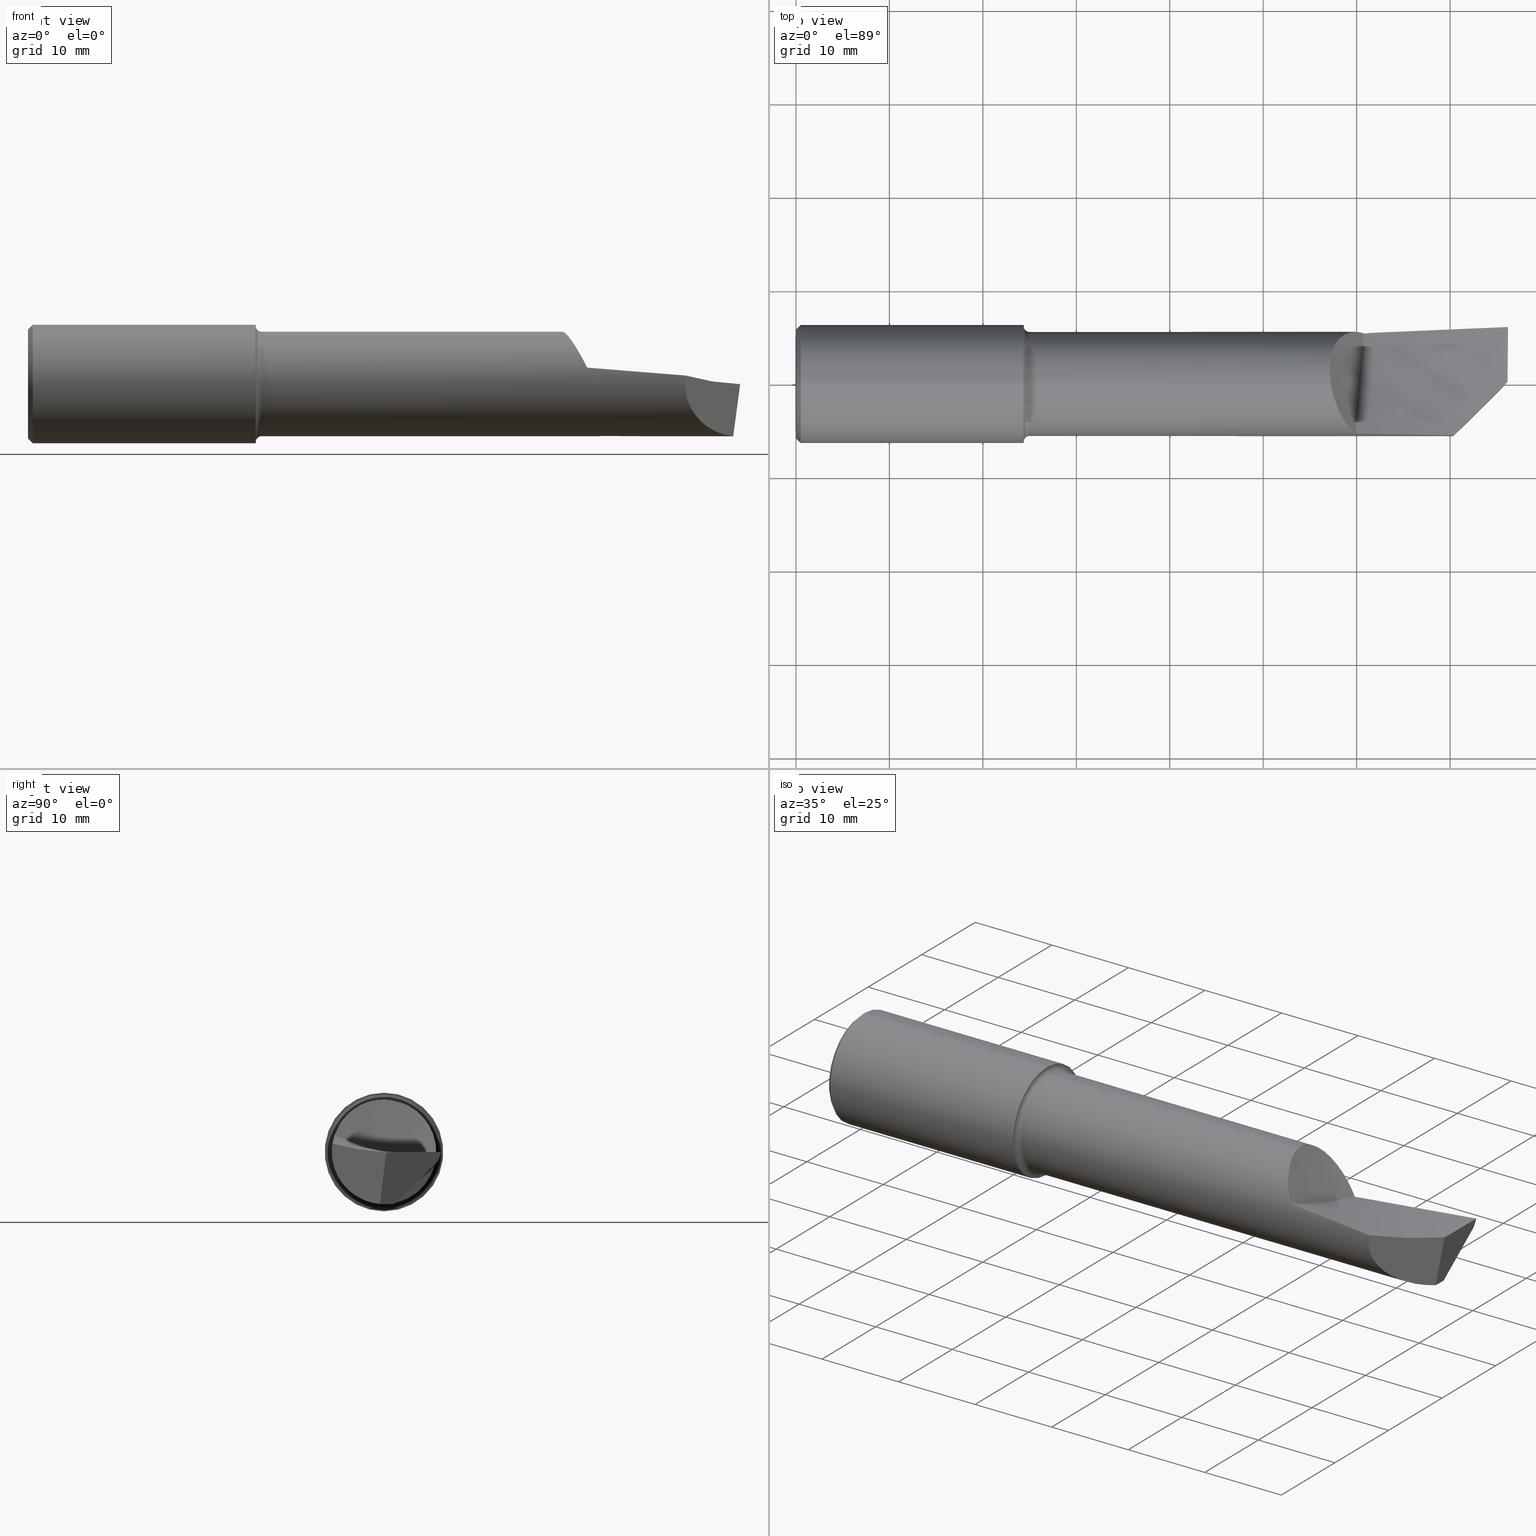
[diagram: canonical four-view strip — front | top / right | iso, engineering-drawing reading convention]
A machine part, canonical four-view strip (front | top / right | iso — engineering-drawing reading convention). The complete STEP part file that produces these views, byte-faithful:
ISO-10303-21;
HEADER;
FILE_DESCRIPTION (( 'STEP AP203' ),
    '1' );
FILE_NAME ('216414-HB4802000.STEP',
    '2024-08-09T22:30:45',
    ( '' ),
    ( '' ),
    'SwSTEP 2.0',
    'SolidWorks 2024',
    '' );
FILE_SCHEMA (( 'CONFIG_CONTROL_DESIGN' ));
ENDSEC;

DATA;
#1 = DIRECTION ( 'NONE',  ( -0.9925083585251991414, 0.008661489226065230418, 0.1218693434051474900 ) ) ;
#2 = AXIS2_PLACEMENT_3D ( 'NONE', #455, #336, #50 ) ;
#3 = CARTESIAN_POINT ( 'NONE',  ( 2.606666739029601665, 0.2256837431084287859, -0.03431182089004202601 ) ) ;
#4 = AXIS2_PLACEMENT_3D ( 'NONE', #302, #24, #666 ) ;
#5 =( NAMED_UNIT ( * ) PLANE_ANGLE_UNIT ( ) SI_UNIT ( $, .RADIAN. ) );
#6 = EDGE_CURVE ( 'NONE', #518, #96, #425, .T. ) ;
#7 = CARTESIAN_POINT ( 'NONE',  ( 0.000000000000000000, 0.000000000000000000, 0.2199999999999999734 ) ) ;
#8 = B_SPLINE_CURVE_WITH_KNOTS ( 'NONE', 3,
 ( #174, #519, #215, #451, #159, #392, #218, #625, #45 ),
 .UNSPECIFIED., .F., .F.,
 ( 4, 2, 1, 1, 1, 4 ),
 ( 0.9276727079954698585, 0.9321931637457528952, 0.9367136194960358209, 0.9457545309966022273, 0.9638363539977349292, 1.000000000000000000 ),
 .UNSPECIFIED. ) ;
#9 = CARTESIAN_POINT ( 'NONE',  ( 2.564429700643780841, -0.2143015012764732941, 0.05261254719292924459 ) ) ;
#10 = CARTESIAN_POINT ( 'NONE',  ( 2.341349125908411821, 0.2183424038738380479, 0.02700579478127015584 ) ) ;
#11 = CARTESIAN_POINT ( 'NONE',  ( 2.356559098504054095, -0.2088777642239234011, 0.06906576061805747013 ) ) ;
#12 = CARTESIAN_POINT ( 'NONE',  ( 2.410000000000000142, 0.2159144635021685021, -0.04897531016107510571 ) ) ;
#13 = PERSON_AND_ORGANIZATION_ROLE ( 'design_owner' ) ;
#14 = LINE ( 'NONE', #656, #42 ) ;
#15 = ORIENTED_EDGE ( 'NONE', *, *, #629, .T. ) ;
#16 = CARTESIAN_POINT ( 'NONE',  ( 2.303450587856114229, 0.2017322369564549522, 0.08777317349639240929 ) ) ;
#17 = ADVANCED_FACE ( 'NONE', ( #533 ), #124, .T. ) ;
#18 = CONICAL_SURFACE ( 'NONE', #255, 0.2498499999999999888, 0.7853981633974506105 ) ;
#19 = CARTESIAN_POINT ( 'NONE',  ( 2.283226719027449558, -0.1059187799789651496, 0.1929277633858682006 ) ) ;
#20 = APPROVAL_ROLE ( '' ) ;
#21 = ADVANCED_FACE ( 'NONE', ( #481 ), #589, .T. ) ;
#22 = CARTESIAN_POINT ( 'NONE',  ( 2.748939529771277979, -0.2394126230373499198, -0.1000115783150166138 ) ) ;
#23 = DIRECTION ( 'NONE',  ( 1.000000000000000000, -0.000000000000000000, -0.000000000000000000 ) ) ;
#24 = DIRECTION ( 'NONE',  ( -1.000000000000000000, -0.000000000000000000, -0.000000000000000000 ) ) ;
#25 = COORDINATED_UNIVERSAL_TIME_OFFSET ( 8, 0, .BEHIND. ) ;
#26 = CIRCLE ( 'NONE', #343, 0.2199999999999999734 ) ;
#27 = CARTESIAN_POINT ( 'NONE',  ( 0.000000000000000000, 2.937315347754926265E-17, 0.2298499999999999155 ) ) ;
#28 = AXIS2_PLACEMENT_3D ( 'NONE', #669, #191, #376 ) ;
#29 = CARTESIAN_POINT ( 'NONE',  ( 2.291331261531611485, -0.1239598244847214398, 0.1817528458976704064 ) ) ;
#30 = ORIENTED_EDGE ( 'NONE', *, *, #720, .T. ) ;
#31 = CALENDAR_DATE ( 2024, 9, 8 ) ;
#32 = B_SPLINE_CURVE_WITH_KNOTS ( 'NONE', 3,
 ( #447, #495, #678, #664 ),
 .UNSPECIFIED., .F., .F.,
 ( 4, 4 ),
 ( 5.707661568149648119E-05, 0.006771847982226828627 ),
 .UNSPECIFIED. ) ;
#33 = CARTESIAN_POINT ( 'NONE',  ( 0.9595250382262699995, 3.000384657911014877E-17, -0.2449999999999999956 ) ) ;
#34 = DIRECTION ( 'NONE',  ( 0.000000000000000000, -1.000000000000000000, 0.000000000000000000 ) ) ;
#35 = ORIENTED_EDGE ( 'NONE', *, *, #176, .T. ) ;
#36 = CARTESIAN_POINT ( 'NONE',  ( 2.999444042726896686, 0.2388107301504568125, -0.004425444538990270550 ) ) ;
#37 = DIRECTION ( 'NONE',  ( 1.000000000000000000, -0.000000000000000000, -0.000000000000000000 ) ) ;
#38 = VERTEX_POINT ( 'NONE', #180 ) ;
#39 = EDGE_CURVE ( 'NONE', #96, #718, #306, .T. ) ;
#40 = FACE_OUTER_BOUND ( 'NONE', #486, .T. ) ;
#41 = AXIS2_PLACEMENT_3D ( 'NONE', #360, #476, #541 ) ;
#42 = VECTOR ( 'NONE', #43, 39.37007874015748854 ) ;
#43 = DIRECTION ( 'NONE',  ( -0.008726535498366671390, -0.9999619230641714207, 0.000000000000000000 ) ) ;
#44 = EDGE_LOOP ( 'NONE', ( #744, #490, #121 ) ) ;
#45 = CARTESIAN_POINT ( 'NONE',  ( 2.250000000000000444, 0.02296396303119626128, 0.2187982093206017054 ) ) ;
#46 = CARTESIAN_POINT ( 'NONE',  ( 0.000000000000000000, 0.000000000000000000, 0.000000000000000000 ) ) ;
#47 = ORIENTED_EDGE ( 'NONE', *, *, #629, .F. ) ;
#48 = CARTESIAN_POINT ( 'NONE',  ( 2.410000000000000142, 0.2135228625924188994, -0.05299044395307118266 ) ) ;
#49 = EDGE_CURVE ( 'NONE', #518, #754, #505, .T. ) ;
#50 = DIRECTION ( 'NONE',  ( 0.000000000000000000, 0.000000000000000000, 1.000000000000000000 ) ) ;
#51 = EDGE_LOOP ( 'NONE', ( #178, #349, #78, #35, #297, #628, #529, #92, #365, #577 ) ) ;
#52 = CARTESIAN_POINT ( 'NONE',  ( 0.9595250382262699995, 3.059780027669661931E-17, -0.2498499999999999888 ) ) ;
#53 = B_SPLINE_SURFACE_WITH_KNOTS ( 'NONE', 1, 3, ( 
 ( #683, #325, #521, #209 ),
 ( #321, #393, #631, #563 ) ),
 .UNSPECIFIED., .F., .F., .F.,
 ( 2, 2 ),
 ( 4, 4 ),
 ( 0.000000000000000000, 1.000000000000000000 ),
 ( 0.03106933249314342005, 0.04273401883258817063 ),
 .UNSPECIFIED. ) ;
#54 = AXIS2_PLACEMENT_3D ( 'NONE', #160, #743, #106 ) ;
#55 = CARTESIAN_POINT ( 'NONE',  ( 0.000000000000000000, 0.000000000000000000, 0.000000000000000000 ) ) ;
#56 = EDGE_CURVE ( 'NONE', #87, #556, #665, .T. ) ;
#57 = CARTESIAN_POINT ( 'NONE',  ( 2.356559098504054095, -0.2088777642239234011, 0.06906576061805747013 ) ) ;
#58 = DIRECTION ( 'NONE',  ( 0.000000000000000000, 0.000000000000000000, 1.000000000000000000 ) ) ;
#59 = DIRECTION ( 'NONE',  ( 0.000000000000000000, -0.000000000000000000, 1.000000000000000000 ) ) ;
#60 =( BOUNDED_CURVE ( )  B_SPLINE_CURVE ( 2, ( #388, #372, #670 ),
 .UNSPECIFIED., .F., .F. ) 
 B_SPLINE_CURVE_WITH_KNOTS ( ( 3, 3 ),
 ( 0.5266614230579080846, 0.5400257304258027080 ),
 .UNSPECIFIED. ) 
 CURVE ( )  GEOMETRIC_REPRESENTATION_ITEM ( )  RATIONAL_B_SPLINE_CURVE ( ( 0.9955652346528232055, 0.9953917806560831361, 0.9952287059344254727 ) ) 
 REPRESENTATION_ITEM ( '' )  );
#61 = ORIENTED_EDGE ( 'NONE', *, *, #421, .F. ) ;
#62 = CARTESIAN_POINT ( 'NONE',  ( 2.970822649411938077, -0.01752950339669018254, -0.2193005164395774864 ) ) ;
#63 = DIRECTION ( 'NONE',  ( 1.000000000000000000, 0.000000000000000000, 0.000000000000000000 ) ) ;
#64 = ORIENTED_EDGE ( 'NONE', *, *, #128, .T. ) ;
#65 = LINE ( 'NONE', #245, #639 ) ;
#66 = APPROVAL ( #146, 'UNSPECIFIED' ) ;
#67 = DIRECTION ( 'NONE',  ( -1.000000000000000000, -0.000000000000000000, -0.000000000000000000 ) ) ;
#68 = AXIS2_PLACEMENT_3D ( 'NONE', #203, #211, #558 ) ;
#69 = VERTEX_POINT ( 'NONE', #555 ) ;
#70 = PRODUCT ( '216414-HB4802000', '216414-HB4802000', '', ( #350 ) ) ;
#71 = CARTESIAN_POINT ( 'NONE',  ( 2.418486830548867594, 0.2160475044874675399, -0.04882782362294733197 ) ) ;
#72 = VERTEX_POINT ( 'NONE', #201 ) ;
#73 = CARTESIAN_POINT ( 'NONE',  ( 2.303082447116823417, 0.2014617548662014646, 0.08839233498446039117 ) ) ;
#74 = CARTESIAN_POINT ( 'NONE',  ( 0.9595250382262699995, 0.000000000000000000, 0.000000000000000000 ) ) ;
#75 = CARTESIAN_POINT ( 'NONE',  ( 2.410000000000000142, 0.2159144635021685021, -0.04897531016107510571 ) ) ;
#76 = EDGE_CURVE ( 'NONE', #691, #155, #497, .T. ) ;
#77 = PRODUCT_DEFINITION_FORMATION_WITH_SPECIFIED_SOURCE ( 'ANY', '', #70, .NOT_KNOWN. ) ;
#78 = ORIENTED_EDGE ( 'NONE', *, *, #236, .T. ) ;
#79 = CARTESIAN_POINT ( 'NONE',  ( 2.256435488265876810, -0.02101578052564569143, 0.2199999835917510471 ) ) ;
#80 = DATE_AND_TIME ( #150, #508 ) ;
#81 = DIRECTION ( 'NONE',  ( 1.000000000000000000, 0.000000000000000000, 0.000000000000000000 ) ) ;
#82 = DIRECTION ( 'NONE',  ( -1.000000000000000000, -0.000000000000000000, -0.000000000000000000 ) ) ;
#83 = EDGE_LOOP ( 'NONE', ( #307, #186, #461 ) ) ;
#84 = CARTESIAN_POINT ( 'NONE',  ( 0.9595250382262699995, 0.3402499999999997193, 0.000000000000000000 ) ) ;
#85 = EDGE_CURVE ( 'NONE', #632, #273, #545, .T. ) ;
#86 = FACE_OUTER_BOUND ( 'NONE', #564, .T. ) ;
#87 = VERTEX_POINT ( 'NONE', #542 ) ;
#88 = COORDINATED_UNIVERSAL_TIME_OFFSET ( 8, 0, .BEHIND. ) ;
#89 = LOCAL_TIME ( 15, 30, 45.00000000000000000, #318 ) ;
#90 = CARTESIAN_POINT ( 'NONE',  ( 0.000000000000000000, 0.000000000000000000, 0.2498499999999999888 ) ) ;
#91 = CARTESIAN_POINT ( 'NONE',  ( 2.415641684470006378, 0.2152245864486048432, -0.05019323217790304381 ) ) ;
#92 = ORIENTED_EDGE ( 'NONE', *, *, #39, .T. ) ;
#93 = CALENDAR_DATE ( 2024, 9, 8 ) ;
#94 = CARTESIAN_POINT ( 'NONE',  ( 3.000000000000000444, 0.4258375057284731757, 0.01320825401576949422 ) ) ;
#95 = FACE_OUTER_BOUND ( 'NONE', #592, .T. ) ;
#96 = VERTEX_POINT ( 'NONE', #373 ) ;
#97 = CARTESIAN_POINT ( 'NONE',  ( 2.612381827555384728, 0.2257843348541355988, -0.03415235492857734284 ) ) ;
#98 = DIRECTION ( 'NONE',  ( -1.000000000000000000, -0.000000000000000000, -0.000000000000000000 ) ) ;
#99 = VERTEX_POINT ( 'NONE', #732 ) ;
#100 = EDGE_CURVE ( 'NONE', #632, #111, #357, .T. ) ;
#101 = FACE_OUTER_BOUND ( 'NONE', #214, .T. ) ;
#102 = AXIS2_PLACEMENT_3D ( 'NONE', #757, #59, #179 ) ;
#103 = DIRECTION ( 'NONE',  ( -1.000000000000000000, -0.000000000000000000, -0.000000000000000000 ) ) ;
#104 = ORIENTED_EDGE ( 'NONE', *, *, #755, .F. ) ;
#105 = CARTESIAN_POINT ( 'NONE',  ( 0.000000000000000000, 0.000000000000000000, -0.2298499999999999155 ) ) ;
#106 = DIRECTION ( 'NONE',  ( 0.000000000000000000, -1.224646799147353454E-16, 1.000000000000000000 ) ) ;
#107 = VERTEX_POINT ( 'NONE', #729 ) ;
#108 = CARTESIAN_POINT ( 'NONE',  ( 2.268323433205456485, 0.1590487263599171808, 0.1519989609637909245 ) ) ;
#109 = ADVANCED_FACE ( 'NONE', ( #132 ), #595, .F. ) ;
#110 = FACE_OUTER_BOUND ( 'NONE', #499, .T. ) ;
#111 = VERTEX_POINT ( 'NONE', #135 ) ;
#112 = CARTESIAN_POINT ( 'NONE',  ( 2.970889738018301252, 0.000000000000000000, -0.2200000000000000566 ) ) ;
#113 = AXIS2_PLACEMENT_3D ( 'NONE', #74, #708, #647 ) ;
#114 = CARTESIAN_POINT ( 'NONE',  ( 3.000000000000000444, 0.2402499999999999636, 0.000000000000000000 ) ) ;
#115 = ORIENTED_EDGE ( 'NONE', *, *, #531, .T. ) ;
#116 = DIRECTION ( 'NONE',  ( -1.000000000000000000, -0.000000000000000000, -0.000000000000000000 ) ) ;
#117 = B_SPLINE_CURVE_WITH_KNOTS ( 'NONE', 3,
 ( #271, #226, #583, #575 ),
 .UNSPECIFIED., .F., .F.,
 ( 4, 4 ),
 ( 0.000000000000000000, 0.009602408570562699294 ),
 .UNSPECIFIED. ) ;
#118 = CARTESIAN_POINT ( 'NONE',  ( 1.717948717948720727, -0.3527962921881071523, 0.2384890030643342096 ) ) ;
#119 = ORIENTED_EDGE ( 'NONE', *, *, #355, .F. ) ;
#120 = FACE_OUTER_BOUND ( 'NONE', #158, .T. ) ;
#121 = ORIENTED_EDGE ( 'NONE', *, *, #156, .T. ) ;
#122 = CARTESIAN_POINT ( 'NONE',  ( 2.377263106783647828, 0.2194462568404665082, -0.02799947325392306702 ) ) ;
#123 = CARTESIAN_POINT ( 'NONE',  ( 0.9595250382262699995, 0.000000000000000000, 0.2449999999999999956 ) ) ;
#124 = B_SPLINE_SURFACE_WITH_KNOTS ( 'NONE', 1, 3, ( 
 ( #410, #644, #3, #12 ),
 ( #126, #300, #243, #581 ) ),
 .UNSPECIFIED., .F., .F., .F.,
 ( 2, 2 ),
 ( 4, 4 ),
 ( 0.000000000000000000, 1.000000000000000000 ),
 ( 0.000000000000000000, 1.000000000000000000 ),
 .UNSPECIFIED. ) ;
#125 = CIRCLE ( 'NONE', #381, 0.2200000000000000011 ) ;
#126 = CARTESIAN_POINT ( 'NONE',  ( 3.000000000000000444, 0.2288778106318485051, -0.03500000000000001027 ) ) ;
#127 = DIRECTION ( 'NONE',  ( 0.000000000000000000, -0.8460071056678396539, -0.5331716207371927085 ) ) ;
#128 = EDGE_CURVE ( 'NONE', #221, #72, #230, .T. ) ;
#129 = CARTESIAN_POINT ( 'NONE',  ( 0.02000000000000000042, 3.059780027669661931E-17, -0.2498499999999999888 ) ) ;
#130 = CARTESIAN_POINT ( 'NONE',  ( 2.392944745247169713, 0.2140968924730453637, -0.05062134562993372833 ) ) ;
#131 = EDGE_CURVE ( 'NONE', #465, #691, #254, .T. ) ;
#132 = FACE_OUTER_BOUND ( 'NONE', #419, .T. ) ;
#133 = ORIENTED_EDGE ( 'NONE', *, *, #711, .F. ) ;
#134 = APPROVAL_STATUS ( 'not_yet_approved' ) ;
#135 = CARTESIAN_POINT ( 'NONE',  ( 2.410000000000000142, 2.694222958124177561E-17, -0.2200000000000000011 ) ) ;
#136 = LOCAL_TIME ( 15, 30, 45.00000000000000000, #198 ) ;
#137 = AXIS2_PLACEMENT_3D ( 'NONE', #342, #571, #512 ) ;
#138 = PERSON_AND_ORGANIZATION_ROLE ( 'classification_officer' ) ;
#139 = AXIS2_PLACEMENT_3D ( 'NONE', #620, #279, #736 ) ;
#140 = FACE_OUTER_BOUND ( 'NONE', #685, .T. ) ;
#141 = DIRECTION ( 'NONE',  ( 0.000000000000000000, -0.5117430001143385976, -0.8591385812742762251 ) ) ;
#142 = PERSON_AND_ORGANIZATION ( #351, #303 ) ;
#143 = APPROVAL ( #134, 'UNSPECIFIED' ) ;
#144 = PLANE ( 'NONE',  #366 ) ;
#145 = DIRECTION ( 'NONE',  ( 0.000000000000000000, 0.000000000000000000, 1.000000000000000000 ) ) ;
#146 = APPROVAL_STATUS ( 'not_yet_approved' ) ;
#147 = CARTESIAN_POINT ( 'NONE',  ( 0.000000000000000000, 0.000000000000000000, 0.000000000000000000 ) ) ;
#148 = CARTESIAN_POINT ( 'NONE',  ( 2.595439364798721726, 3.734948428837859484E-18, -0.2200000000000000566 ) ) ;
#149 = ORIENTED_EDGE ( 'NONE', *, *, #513, .F. ) ;
#150 = CALENDAR_DATE ( 2024, 9, 8 ) ;
#151 = VECTOR ( 'NONE', #466, 39.37007874015748143 ) ;
#152 = CARTESIAN_POINT ( 'NONE',  ( 2.038461538461540545, 0.4058074895221152611, -0.1396724983455376601 ) ) ;
#153 = ADVANCED_FACE ( 'NONE', ( #86 ), #704, .T. ) ;
#154 = CARTESIAN_POINT ( 'NONE',  ( 2.410000000000000142, 0.000000000000000000, -0.2200000000000000566 ) ) ;
#155 = VERTEX_POINT ( 'NONE', #129 ) ;
#156 = EDGE_CURVE ( 'NONE', #439, #518, #479, .T. ) ;
#157 = CARTESIAN_POINT ( 'NONE',  ( 2.410000000000000142, 0.1970817183423179408, -0.08059262188691969364 ) ) ;
#158 = EDGE_LOOP ( 'NONE', ( #406, #453, #750, #30, #657, #115 ) ) ;
#159 = CARTESIAN_POINT ( 'NONE',  ( 2.252520733773949679, 0.003396144702150293883, 0.2199775199475225707 ) ) ;
#160 = CARTESIAN_POINT ( 'NONE',  ( 0.9845250382262700217, 3.000384657911014877E-17, -0.2449999999999999956 ) ) ;
#161 = ORIENTED_EDGE ( 'NONE', *, *, #100, .T. ) ;
#162 = CARTESIAN_POINT ( 'NONE',  ( 2.253785031901272884, 0.1187834096907069842, 0.1856707252788643292 ) ) ;
#163 = AXIS2_PLACEMENT_3D ( 'NONE', #527, #335, #578 ) ;
#164 = VECTOR ( 'NONE', #141, 39.37007874015748143 ) ;
#165 = CARTESIAN_POINT ( 'NONE',  ( 2.960702989773093652, -0.02764916303553413557, -0.3009961683226821672 ) ) ;
#166 = ORIENTED_EDGE ( 'NONE', *, *, #369, .F. ) ;
#167 = EDGE_CURVE ( 'NONE', #38, #646, #14, .T. ) ;
#168 = CARTESIAN_POINT ( 'NONE',  ( 2.998256711176775724, 0.08645143747529006328, -0.003266647090703632232 ) ) ;
#169 = DIRECTION ( 'NONE',  ( 0.000000000000000000, 0.000000000000000000, 1.000000000000000000 ) ) ;
#170 = ORIENTED_EDGE ( 'NONE', *, *, #236, .F. ) ;
#171 = CARTESIAN_POINT ( 'NONE',  ( 0.000000000000000000, 2.694222958124176637E-17, -0.2199999999999999734 ) ) ;
#172 = CARTESIAN_POINT ( 'NONE',  ( 2.038461538461540101, -0.1360584583238938217, 0.04682475114047649628 ) ) ;
#173 = ORIENTED_EDGE ( 'NONE', *, *, #414, .F. ) ;
#174 = CARTESIAN_POINT ( 'NONE',  ( 2.253048836201134275, -1.183062825732959087E-06, 0.2200124226379089609 ) ) ;
#175 = AXIS2_PLACEMENT_3D ( 'NONE', #46, #449, #398 ) ;
#176 = EDGE_CURVE ( 'NONE', #733, #646, #333, .T. ) ;
#177 = CARTESIAN_POINT ( 'NONE',  ( 2.418486830548867594, 0.2160475044874675399, -0.04882782362294733197 ) ) ;
#178 = ORIENTED_EDGE ( 'NONE', *, *, #700, .F. ) ;
#179 = DIRECTION ( 'NONE',  ( 1.000000000000000000, 0.000000000000000000, -0.000000000000000000 ) ) ;
#180 = CARTESIAN_POINT ( 'NONE',  ( 2.971247793545429339, 0.04102909952505776753, -0.2200000000000000566 ) ) ;
#181 = APPLICATION_PROTOCOL_DEFINITION ( 'international standard', 'config_control_design', 1994, #682 ) ;
#182 = CARTESIAN_POINT ( 'NONE',  ( 2.679487179487180182, 0.1402361651789809094, -0.03310749311051140731 ) ) ;
#183 = ORIENTED_EDGE ( 'NONE', *, *, #100, .F. ) ;
#184 = CARTESIAN_POINT ( 'NONE',  ( 2.289897884054996613, 0.1899916407718323097, 0.1111104138017083298 ) ) ;
#185 = CC_DESIGN_APPROVAL ( #66, ( #684 ) ) ;
#186 = ORIENTED_EDGE ( 'NONE', *, *, #167, .T. ) ;
#187 = EDGE_CURVE ( 'NONE', #556, #87, #473, .T. ) ;
#188 = CARTESIAN_POINT ( 'NONE',  ( 2.846075425691748428, -0.1422767271168798586, 0.01425986872581100004 ) ) ;
#189 = ORIENTED_EDGE ( 'NONE', *, *, #734, .T. ) ;
#190 = CARTESIAN_POINT ( 'NONE',  ( 2.361872680313165329, 0.2211791025387656040, -0.004520542396873753269 ) ) ;
#191 = DIRECTION ( 'NONE',  ( -1.000000000000000000, -0.000000000000000000, -0.000000000000000000 ) ) ;
#192 = B_SPLINE_CURVE_WITH_KNOTS ( 'NONE', 3,
 ( #437, #609, #622, #11 ),
 .UNSPECIFIED., .F., .F.,
 ( 4, 4 ),
 ( 0.000000000000000000, 1.000000000000000000 ),
 .UNSPECIFIED. ) ;
#193 = PERSON_AND_ORGANIZATION ( #351, #303 ) ;
#194 = DIRECTION ( 'NONE',  ( 0.000000000000000000, 0.000000000000000000, 1.000000000000000000 ) ) ;
#195 = CC_DESIGN_PERSON_AND_ORGANIZATION_ASSIGNMENT ( #301, #13, ( #70 ) ) ;
#196 = CARTESIAN_POINT ( 'NONE',  ( 2.286194494552778345, -0.1128910208792930636, 0.1889741111404043827 ) ) ;
#197 = CIRCLE ( 'NONE', #54, 0.02500000000000000486 ) ;
#198 = COORDINATED_UNIVERSAL_TIME_OFFSET ( 8, 0, .BEHIND. ) ;
#199 = APPLICATION_CONTEXT ( 'configuration controlled 3d designs of mechanical parts and assemblies' ) ;
#200 = DIRECTION ( 'NONE',  ( 0.000000000000000000, -2.664535259100375697E-15, 1.000000000000000000 ) ) ;
#201 = CARTESIAN_POINT ( 'NONE',  ( 2.250000000000000444, 0.09504805913229114056, 0.1984083326253826274 ) ) ;
#202 = ORIENTED_EDGE ( 'NONE', *, *, #590, .T. ) ;
#203 = CARTESIAN_POINT ( 'NONE',  ( 2.754857864376268672, -0.2334942884323585599, -0.2500000000000000555 ) ) ;
#204 = CARTESIAN_POINT ( 'NONE',  ( 2.833707386268460748, -0.1546447665401669003, -0.2083403850635354160 ) ) ;
#205 = ORIENTED_EDGE ( 'NONE', *, *, #76, .T. ) ;
#206 = CALENDAR_DATE ( 2024, 9, 8 ) ;
#207 = EDGE_CURVE ( 'NONE', #754, #439, #503, .T. ) ;
#208 = CARTESIAN_POINT ( 'NONE',  ( 0.9845250382262700217, 2.694222958124176637E-17, -0.2199999999999999734 ) ) ;
#209 = CARTESIAN_POINT ( 'NONE',  ( 2.250000000000000888, 0.2878387765262970244, 0.1549375342438686076 ) ) ;
#210 = ORIENTED_EDGE ( 'NONE', *, *, #751, .T. ) ;
#211 = DIRECTION ( 'NONE',  ( -0.7071067811865462405, 0.7071067811865489050, 0.000000000000000000 ) ) ;
#212 = ADVANCED_FACE ( 'NONE', ( #389 ), #385, .T. ) ;
#213 = CARTESIAN_POINT ( 'NONE',  ( 2.605184837390462693, 0.2091104526375173189, -0.06742930688176083931 ) ) ;
#214 = EDGE_LOOP ( 'NONE', ( #661, #741, #391, #394 ) ) ;
#215 = CARTESIAN_POINT ( 'NONE',  ( 2.252899803584523575, 0.0009714720314215125529, 0.2199983901436112776 ) ) ;
#216 = FACE_OUTER_BOUND ( 'NONE', #241, .T. ) ;
#217 = ORIENTED_EDGE ( 'NONE', *, *, #531, .F. ) ;
#218 = CARTESIAN_POINT ( 'NONE',  ( 2.251069953674378787, 0.01350924812413161445, 0.2196435465291612099 ) ) ;
#219 = CARTESIAN_POINT ( 'NONE',  ( 0.02000000000000000042, 0.000000000000000000, -0.2498499999999999888 ) ) ;
#220 = ADVANCED_FACE ( 'NONE', ( #272 ), #749, .T. ) ;
#221 = VERTEX_POINT ( 'NONE', #679 ) ;
#222 = CARTESIAN_POINT ( 'NONE',  ( 2.258515655996602867, 0.1351780063360110973, 0.1737028663086875591 ) ) ;
#223 = AXIS2_PLACEMENT_3D ( 'NONE', #313, #82, #145 ) ;
#224 = DIRECTION ( 'NONE',  ( 1.000000000000000000, 0.000000000000000000, 0.000000000000000000 ) ) ;
#225 = ORIENTED_EDGE ( 'NONE', *, *, #76, .F. ) ;
#226 = CARTESIAN_POINT ( 'NONE',  ( 2.720539435097813818, 0.01518366230943161803, -0.2200000000000000566 ) ) ;
#227 = CARTESIAN_POINT ( 'NONE',  ( 2.358974358974360364, -0.1396846007746824214, 0.02986396988880485326 ) ) ;
#228 = ORIENTED_EDGE ( 'NONE', *, *, #734, .F. ) ;
#229 = CARTESIAN_POINT ( 'NONE',  ( 2.970822649411938077, -0.01752950339669018254, -0.2193005164395774864 ) ) ;
#230 = B_SPLINE_CURVE_WITH_KNOTS ( 'NONE', 3,
 ( #498, #258, #249, #426 ),
 .UNSPECIFIED., .F., .F.,
 ( 4, 4 ),
 ( 0.000000000000000000, 1.000000000000000000 ),
 .UNSPECIFIED. ) ;
#231 = ADVANCED_FACE ( 'NONE', ( #95 ), #53, .T. ) ;
#232 = CARTESIAN_POINT ( 'NONE',  ( 2.606667235806221949, -0.05861467462106827175, -0.2653019991291404311 ) ) ;
#233 = CARTESIAN_POINT ( 'NONE',  ( 2.357725844419105599, -0.2089080893730914379, 0.06897406050240462161 ) ) ;
#234 = CARTESIAN_POINT ( 'NONE',  ( 2.330111283526375754, 0.2155380220858995610, 0.04454306593681171822 ) ) ;
#235 = CC_DESIGN_SECURITY_CLASSIFICATION ( #456, ( #77 ) ) ;
#236 = EDGE_CURVE ( 'NONE', #677, #733, #442, .T. ) ;
#237 = VECTOR ( 'NONE', #103, 39.37007874015748143 ) ;
#238 = DIRECTION ( 'NONE',  ( 0.1218739150664907567, 0.000000000000000000, 0.9925455903012041503 ) ) ;
#239 = EDGE_LOOP ( 'NONE', ( #161, #561, #250, #166, #263, #597, #189, #523, #15 ) ) ;
#240 = CARTESIAN_POINT ( 'NONE',  ( 3.000000000000000444, -0.4232169687476833864, 0.04721891282440422027 ) ) ;
#241 = EDGE_LOOP ( 'NONE', ( #635, #268, #341, #537 ) ) ;
#242 = CARTESIAN_POINT ( 'NONE',  ( 0.02000000000000000042, 0.000000000000000000, 0.000000000000000000 ) ) ;
#243 = CARTESIAN_POINT ( 'NONE',  ( 2.606666776175627920, 0.2092017806736846119, -0.06732936455371786588 ) ) ;
#244 = EDGE_CURVE ( 'NONE', #69, #273, #329, .T. ) ;
#245 = CARTESIAN_POINT ( 'NONE',  ( 2.410000000000000142, 0.1970817183423179408, -0.08059262188691969364 ) ) ;
#246 = CONICAL_SURFACE ( 'NONE', #675, 0.2498499999999999888, 0.7853981633974506105 ) ;
#247 = DIRECTION ( 'NONE',  ( -1.000000000000000000, -0.000000000000000000, -0.000000000000000000 ) ) ;
#248 = CARTESIAN_POINT ( 'NONE',  ( 2.268791352084497781, 0.1599650663951522611, 0.1510341587815113018 ) ) ;
#249 = CARTESIAN_POINT ( 'NONE',  ( 2.250000000000000444, 0.07102077957284146092, 0.2052070382287662365 ) ) ;
#250 = ORIENTED_EDGE ( 'NONE', *, *, #56, .F. ) ;
#251 = APPROVAL_DATE_TIME ( #446, #66 ) ;
#252 = CARTESIAN_POINT ( 'NONE',  ( 2.970822649411938077, -0.01752950339669018254, -0.2193005164395774864 ) ) ;
#253 = CARTESIAN_POINT ( 'NONE',  ( 2.806231657992947159, 0.2339654237526749281, -0.01788766252031828360 ) ) ;
#254 = LINE ( 'NONE', #435, #270 ) ;
#255 = AXIS2_PLACEMENT_3D ( 'NONE', #278, #407, #681 ) ;
#256 = ORIENTED_EDGE ( 'NONE', *, *, #560, .F. ) ;
#257 = CARTESIAN_POINT ( 'NONE',  ( 2.250000000000000444, 0.9517059271875957238, 2.845044789305785304 ) ) ;
#258 = CARTESIAN_POINT ( 'NONE',  ( 2.250000000000000444, 0.04699247397412689015, 0.2120036020236629459 ) ) ;
#259 = EDGE_CURVE ( 'NONE', #326, #632, #653, .T. ) ;
#260 = DATE_AND_TIME ( #31, #580 ) ;
#261 = DIRECTION ( 'NONE',  ( 0.000000000000000000, 0.000000000000000000, -1.000000000000000000 ) ) ;
#262 = LINE ( 'NONE', #219, #484 ) ;
#263 = ORIENTED_EDGE ( 'NONE', *, *, #724, .T. ) ;
#264 = PERSON_AND_ORGANIZATION ( #351, #303 ) ;
#265 = ADVANCED_FACE ( 'NONE', ( #216 ), #663, .F. ) ;
#266 = FACE_OUTER_BOUND ( 'NONE', #672, .T. ) ;
#267 = CARTESIAN_POINT ( 'NONE',  ( 2.410000000000000142, -0.02232082031225495616, -0.2188647549985790752 ) ) ;
#268 = ORIENTED_EDGE ( 'NONE', *, *, #320, .F. ) ;
#269 = AXIS2_PLACEMENT_3D ( 'NONE', #276, #34, #517 ) ;
#270 = VECTOR ( 'NONE', #610, 39.37007874015748143 ) ;
#271 = CARTESIAN_POINT ( 'NONE',  ( 2.595439364798721726, 3.734948428837859484E-18, -0.2200000000000000566 ) ) ;
#272 = FACE_OUTER_BOUND ( 'NONE', #51, .T. ) ;
#273 = VERTEX_POINT ( 'NONE', #614 ) ;
#274 = CARTESIAN_POINT ( 'NONE',  ( 3.000000000000000444, 0.2402499999999999636, 0.000000000000000000 ) ) ;
#275 = EDGE_CURVE ( 'NONE', #586, #556, #197, .T. ) ;
#276 = CARTESIAN_POINT ( 'NONE',  ( 0.9845250382262700217, 0.000000000000000000, 0.2449999999999999956 ) ) ;
#277 = ORIENTED_EDGE ( 'NONE', *, *, #187, .T. ) ;
#278 = CARTESIAN_POINT ( 'NONE',  ( 0.02000000000000000042, 0.000000000000000000, 0.000000000000000000 ) ) ;
#279 = DIRECTION ( 'NONE',  ( -1.000000000000000000, -0.000000000000000000, -0.000000000000000000 ) ) ;
#280 = ORIENTED_EDGE ( 'NONE', *, *, #259, .T. ) ;
#281 = DIRECTION ( 'NONE',  ( -1.000000000000000000, -0.000000000000000000, -0.000000000000000000 ) ) ;
#282 = AXIS2_PLACEMENT_3D ( 'NONE', #340, #63, #536 ) ;
#283 = DIRECTION ( 'NONE',  ( 0.000000000000000000, 0.000000000000000000, -1.000000000000000000 ) ) ;
#284 = CARTESIAN_POINT ( 'NONE',  ( 2.343568907379045552, -0.2004185357093115072, 0.09466616758537160781 ) ) ;
#285 = EDGE_CURVE ( 'NONE', #694, #155, #452, .T. ) ;
#286 = CARTESIAN_POINT ( 'NONE',  ( 2.253048836201134275, -1.183062825732959087E-06, 0.2200124226379089609 ) ) ;
#287 = CARTESIAN_POINT ( 'NONE',  ( 2.038461538461540101, 0.1282380153811019941, -0.06570616055808793654 ) ) ;
#288 = ADVANCED_BREP_SHAPE_REPRESENTATION ( '216414-HB4802000', ( #548, #41 ), #304 ) ;
#289 = VERTEX_POINT ( 'NONE', #671 ) ;
#290 = EDGE_CURVE ( 'NONE', #377, #87, #331, .T. ) ;
#291 = CARTESIAN_POINT ( 'NONE',  ( 3.000000000000000444, 0.2288778106318485051, -0.03500000000000000333 ) ) ;
#292 = ORIENTED_EDGE ( 'NONE', *, *, #755, .T. ) ;
#293 = CARTESIAN_POINT ( 'NONE',  ( 2.346537449119416863, 0.2191775090838471718, 0.01900924779463712341 ) ) ;
#294 = AXIS2_PLACEMENT_3D ( 'NONE', #438, #98, #380 ) ;
#295 = AXIS2_PLACEMENT_3D ( 'NONE', #714, #475, #707 ) ;
#296 = CARTESIAN_POINT ( 'NONE',  ( 2.606666776175620814, 0.2092017806736841956, -0.06732936455358916328 ) ) ;
#297 = ORIENTED_EDGE ( 'NONE', *, *, #720, .F. ) ;
#298 = CC_DESIGN_PERSON_AND_ORGANIZATION_ASSIGNMENT ( #142, #603, ( #77 ) ) ;
#299 = CARTESIAN_POINT ( 'NONE',  ( 2.410000000000000142, 0.000000000000000000, 0.000000000000000000 ) ) ;
#300 = CARTESIAN_POINT ( 'NONE',  ( 2.803332917529201218, 0.2199919291099060870, -0.05201733606020176454 ) ) ;
#301 = PERSON_AND_ORGANIZATION ( #351, #303 ) ;
#302 = CARTESIAN_POINT ( 'NONE',  ( 0.02000000000000000042, 0.000000000000000000, 0.000000000000000000 ) ) ;
#303 = ORGANIZATION ( 'UNSPECIFIED', 'UNSPECIFIED', '' ) ;
#304 =( GEOMETRIC_REPRESENTATION_CONTEXT ( 3 ) GLOBAL_UNCERTAINTY_ASSIGNED_CONTEXT ( ( #702 ) ) GLOBAL_UNIT_ASSIGNED_CONTEXT ( ( #715, #5, #411 ) ) REPRESENTATION_CONTEXT ( 'NONE', 'WORKASPACE' ) );
#305 = CARTESIAN_POINT ( 'NONE',  ( 2.301763750540529507, -0.1449087477148430780, 0.1665523849273800039 ) ) ;
#306 = B_SPLINE_CURVE_WITH_KNOTS ( 'NONE', 3,
 ( #57, #284, #413, #721, #305, #310, #725, #29, #601, #489, #547, #361, #605, #196, #19, #368, #599, #660, #79, #432 ),
 .UNSPECIFIED., .F., .F.,
 ( 4, 2, 2, 1, 1, 2, 2, 1, 1, 2, 2, 4 ),
 ( 0.000000000000000000, 0.2319181769988921948, 0.4638363539977843897, 0.4928261261226460910, 0.4964498476382536163, 0.4982617083960568238, 0.5000735691538600314, 0.5073210121850736387, 0.5218158982475015195, 0.5797954424972110443, 0.6957545309966309821, 0.9276727079954698585 ),
 .UNSPECIFIED. ) ;
#307 = ORIENTED_EDGE ( 'NONE', *, *, #659, .T. ) ;
#308 = PERSON_AND_ORGANIZATION ( #351, #303 ) ;
#309 = EDGE_CURVE ( 'NONE', #621, #155, #262, .T. ) ;
#310 = CARTESIAN_POINT ( 'NONE',  ( 2.293395547304613480, -0.1282223768002852815, 0.1787856457334612570 ) ) ;
#311 = PERSON_AND_ORGANIZATION_ROLE ( 'creator' ) ;
#312 = CARTESIAN_POINT ( 'NONE',  ( 2.250000000000000444, 0.000000000000000000, 0.000000000000000000 ) ) ;
#313 = CARTESIAN_POINT ( 'NONE',  ( 0.9845250382262700217, 0.000000000000000000, 0.000000000000000000 ) ) ;
#314 = CALENDAR_DATE ( 2024, 9, 8 ) ;
#315 = CARTESIAN_POINT ( 'NONE',  ( 2.679487179487180182, 0.4274412781259713245, -0.03849778046020245481 ) ) ;
#316 = CARTESIAN_POINT ( 'NONE',  ( 2.410000000000000142, 0.000000000000000000, 0.000000000000000000 ) ) ;
#317 = ORIENTED_EDGE ( 'NONE', *, *, #488, .F. ) ;
#318 = COORDINATED_UNIVERSAL_TIME_OFFSET ( 8, 0, .BEHIND. ) ;
#319 = DIRECTION ( 'NONE',  ( -1.000000000000000000, -0.000000000000000000, -0.000000000000000000 ) ) ;
#320 = EDGE_CURVE ( 'NONE', #377, #586, #640, .T. ) ;
#321 = CARTESIAN_POINT ( 'NONE',  ( 2.355206627485804116, -0.2299856027569568973, 0.07713840752615944152 ) ) ;
#322 = ORIENTED_EDGE ( 'NONE', *, *, #290, .F. ) ;
#323 = SHAPE_DEFINITION_REPRESENTATION ( #544, #288 ) ;
#324 = DIRECTION ( 'NONE',  ( -1.000000000000000000, -0.000000000000000000, -0.000000000000000000 ) ) ;
#325 = CARTESIAN_POINT ( 'NONE',  ( 2.249999999999998224, -0.01062714212966805148, 0.2242531487012366376 ) ) ;
#326 = VERTEX_POINT ( 'NONE', #71 ) ;
#327 = CARTESIAN_POINT ( 'NONE',  ( 2.995554176883931330, 0.2286766137360566054, -0.03538440047009819289 ) ) ;
#328 = CARTESIAN_POINT ( 'NONE',  ( 2.418486830548867594, 0.2160475044874675399, -0.04882782362294733197 ) ) ;
#329 = B_SPLINE_CURVE_WITH_KNOTS ( 'NONE', 3,
 ( #740, #443, #213, #157 ),
 .UNSPECIFIED., .F., .F.,
 ( 4, 4 ),
 ( 0.007535277762634916103, 1.000000000000000000 ),
 .UNSPECIFIED. ) ;
#330 = ORIENTED_EDGE ( 'NONE', *, *, #6, .F. ) ;
#331 = CIRCLE ( 'NONE', #269, 0.02500000000000000486 ) ;
#332 = CARTESIAN_POINT ( 'NONE',  ( 0.9595250382262699995, 0.000000000000000000, 0.000000000000000000 ) ) ;
#333 = LINE ( 'NONE', #154, #535 ) ;
#334 = ORIENTED_EDGE ( 'NONE', *, *, #355, .T. ) ;
#335 = DIRECTION ( 'NONE',  ( -1.000000000000000000, -0.000000000000000000, -0.000000000000000000 ) ) ;
#336 = DIRECTION ( 'NONE',  ( -1.000000000000000000, -0.000000000000000000, -0.000000000000000000 ) ) ;
#337 = ORIENTED_EDGE ( 'NONE', *, *, #496, .F. ) ;
#338 = CARTESIAN_POINT ( 'NONE',  ( 2.268622416054464352, 0.1596362058502311942, 0.1513818459146487605 ) ) ;
#339 = CC_DESIGN_DATE_AND_TIME_ASSIGNMENT ( #260, #667, ( #456 ) ) ;
#340 = CARTESIAN_POINT ( 'NONE',  ( 0.9595250382262699995, 0.000000000000000000, 0.000000000000000000 ) ) ;
#341 = ORIENTED_EDGE ( 'NONE', *, *, #290, .T. ) ;
#342 = CARTESIAN_POINT ( 'NONE',  ( 2.410000000000000142, 0.2558415763869938964, -0.006761738212205330341 ) ) ;
#343 = AXIS2_PLACEMENT_3D ( 'NONE', #312, #23, #200 ) ;
#344 = FACE_OUTER_BOUND ( 'NONE', #83, .T. ) ;
#345 = ADVANCED_FACE ( 'NONE', ( #110 ), #528, .T. ) ;
#346 = ORIENTED_EDGE ( 'NONE', *, *, #543, .F. ) ;
#347 = LENGTH_MEASURE_WITH_UNIT ( LENGTH_MEASURE( 0.02539999999999999897 ), #423 );
#348 = DIRECTION ( 'NONE',  ( -1.000000000000000000, -0.000000000000000000, -0.000000000000000000 ) ) ;
#349 = ORIENTED_EDGE ( 'NONE', *, *, #421, .T. ) ;
#350 = MECHANICAL_CONTEXT ( 'NONE', #682, 'mechanical' ) ;
#351 = PERSON ( 'UNSPECIFIED', 'UNSPECIFIED', 'UNSPECIFIED', ('UNSPECIFIED'), ('UNSPECIFIED'), ('UNSPECIFIED') ) ;
#352 = PLANE ( 'NONE',  #102 ) ;
#353 = ORIENTED_EDGE ( 'NONE', *, *, #85, .T. ) ;
#354 = CARTESIAN_POINT ( 'NONE',  ( 2.336129437027310907, 0.2172026737800319962, 0.03511665452094177298 ) ) ;
#355 = EDGE_CURVE ( 'NONE', #694, #99, #727, .T. ) ;
#356 = AXIS2_PLACEMENT_3D ( 'NONE', #689, #514, #623 ) ;
#357 = CIRCLE ( 'NONE', #28, 0.2200000000000000011 ) ;
#358 = CARTESIAN_POINT ( 'NONE',  ( 2.410000000000000142, 0.2144189151190963039, -0.04923950486296325285 ) ) ;
#359 = ORIENTED_EDGE ( 'NONE', *, *, #565, .T. ) ;
#360 = CARTESIAN_POINT ( 'NONE',  ( 0.000000000000000000, 0.000000000000000000, 0.000000000000000000 ) ) ;
#361 = CARTESIAN_POINT ( 'NONE',  ( 2.290623232216533633, -0.1224700767580412242, 0.1827614645761385104 ) ) ;
#362 = CARTESIAN_POINT ( 'NONE',  ( 2.278168894559946089, 0.1761411732434127464, 0.1324183139899762773 ) ) ;
#363 = ADVANCED_FACE ( 'NONE', ( #648 ), #695, .T. ) ;
#364 = CARTESIAN_POINT ( 'NONE',  ( 2.771270714435557725, -0.2170814383730694797, 0.03571623039850647247 ) ) ;
#365 = ORIENTED_EDGE ( 'NONE', *, *, #369, .T. ) ;
#366 = AXIS2_PLACEMENT_3D ( 'NONE', #84, #641, #699 ) ;
#367 = AXIS2_PLACEMENT_3D ( 'NONE', #316, #501, #654 ) ;
#368 = CARTESIAN_POINT ( 'NONE',  ( 2.276456940788355254, -0.08905058601310969491, 0.2015679351482911608 ) ) ;
#369 = EDGE_CURVE ( 'NONE', #718, #87, #591, .T. ) ;
#370 = ORIENTED_EDGE ( 'NONE', *, *, #560, .T. ) ;
#371 = APPROVAL_DATE_TIME ( #383, #387 ) ;
#372 = CARTESIAN_POINT ( 'NONE',  ( 2.401469481609322276, 0.2142601318164511770, -0.04993094446185698809 ) ) ;
#373 = CARTESIAN_POINT ( 'NONE',  ( 2.356559098504054095, -0.2088777642239234011, 0.06906576061805747013 ) ) ;
#374 = APPROVAL_STATUS ( 'not_yet_approved' ) ;
#375 = DIRECTION ( 'NONE',  ( -1.000000000000000000, 0.000000000000000000, 0.000000000000000000 ) ) ;
#376 = DIRECTION ( 'NONE',  ( 0.000000000000000000, 0.000000000000000000, 1.000000000000000000 ) ) ;
#377 = VERTEX_POINT ( 'NONE', #123 ) ;
#378 = CARTESIAN_POINT ( 'NONE',  ( 3.000000000000000444, 0.2402499999999999636, 0.000000000000000000 ) ) ;
#379 = ADVANCED_FACE ( 'NONE', ( #477 ), #706, .F. ) ;
#380 = DIRECTION ( 'NONE',  ( 0.000000000000000000, 0.000000000000000000, 1.000000000000000000 ) ) ;
#381 = AXIS2_PLACEMENT_3D ( 'NONE', #636, #116, #58 ) ;
#382 = ORIENTED_EDGE ( 'NONE', *, *, #659, .F. ) ;
#383 = DATE_AND_TIME ( #206, #136 ) ;
#384 = PLANE ( 'NONE',  #534 ) ;
#385 = CYLINDRICAL_SURFACE ( 'NONE', #175, 0.2199999999999999734 ) ;
#386 = ORIENTED_EDGE ( 'NONE', *, *, #39, .F. ) ;
#387 = APPROVAL ( #374, 'UNSPECIFIED' ) ;
#388 = CARTESIAN_POINT ( 'NONE',  ( 2.392944745247169713, 0.2140968924730453637, -0.05062134562993372833 ) ) ;
#389 = FACE_OUTER_BOUND ( 'NONE', #239, .T. ) ;
#390 = ADVANCED_FACE ( 'NONE', ( #120 ), #642, .F. ) ;
#391 = ORIENTED_EDGE ( 'NONE', *, *, #309, .T. ) ;
#392 = CARTESIAN_POINT ( 'NONE',  ( 2.252011678586734789, 0.006780167464589080019, 0.2199103442296859445 ) ) ;
#393 = CARTESIAN_POINT ( 'NONE',  ( 2.368569211507701500, -0.07569746957465763038, 0.01699333443665539123 ) ) ;
#394 = ORIENTED_EDGE ( 'NONE', *, *, #619, .T. ) ;
#395 = AXIS2_PLACEMENT_3D ( 'NONE', #299, #67, #697 ) ;
#396 = CARTESIAN_POINT ( 'NONE',  ( 2.260302850203078862, 0.1404692177818628873, 0.1694536208928248411 ) ) ;
#397 = PRODUCT_RELATED_PRODUCT_CATEGORY ( 'detail', '', ( #70 ) ) ;
#398 = DIRECTION ( 'NONE',  ( 0.000000000000000000, 0.000000000000000000, 1.000000000000000000 ) ) ;
#399 = ORIENTED_EDGE ( 'NONE', *, *, #128, .F. ) ;
#400 = PLANE ( 'NONE',  #137 ) ;
#401 = CC_DESIGN_DATE_AND_TIME_ASSIGNMENT ( #557, #491, ( #684 ) ) ;
#402 = FACE_OUTER_BOUND ( 'NONE', #730, .T. ) ;
#403 = ORIENTED_EDGE ( 'NONE', *, *, #156, .F. ) ;
#404 = CARTESIAN_POINT ( 'NONE',  ( 1.717948717948720505, -0.1284787043503996806, 0.06242489022452848979 ) ) ;
#405 = DIMENSIONAL_EXPONENTS ( 1.000000000000000000, 0.000000000000000000, 0.000000000000000000, 0.000000000000000000, 0.000000000000000000, 0.000000000000000000, 0.000000000000000000 ) ;
#406 = ORIENTED_EDGE ( 'NONE', *, *, #513, .T. ) ;
#407 = DIRECTION ( 'NONE',  ( 1.000000000000000000, 0.000000000000000000, 0.000000000000000000 ) ) ;
#408 = CIRCLE ( 'NONE', #163, 0.2498499999999999888 ) ;
#409 = CARTESIAN_POINT ( 'NONE',  ( 2.803332785482814060, -0.03231946398677681964, -0.2694059603548960014 ) ) ;
#410 = CARTESIAN_POINT ( 'NONE',  ( 3.000000000000000444, 0.2402499999999999636, 6.829619984160658046E-17 ) ) ;
#411 =( NAMED_UNIT ( * ) SI_UNIT ( $, .STERADIAN. ) SOLID_ANGLE_UNIT ( ) );
#412 = CARTESIAN_POINT ( 'NONE',  ( 2.358974358974360364, -0.3996188273119117840, 0.1471292670482277631 ) ) ;
#413 = CARTESIAN_POINT ( 'NONE',  ( 2.331611175002787473, -0.1879456397189699923, 0.1165832106559144127 ) ) ;
#414 = EDGE_CURVE ( 'NONE', #107, #326, #615, .T. ) ;
#415 = CARTESIAN_POINT ( 'NONE',  ( 2.358974358974360364, 0.1342370902800414656, -0.04940682683429966499 ) ) ;
#416 = CARTESIAN_POINT ( 'NONE',  ( 2.358974358974360364, -0.2089406661879938953, 0.06887523512059520736 ) ) ;
#417 = CARTESIAN_POINT ( 'NONE',  ( 2.286822331381985318, 0.1866629217514892136, 0.1166063220459159083 ) ) ;
#418 = AXIS2_PLACEMENT_3D ( 'NONE', #147, #319, #194 ) ;
#419 = EDGE_LOOP ( 'NONE', ( #133, #445, #277, #322 ) ) ;
#420 = CARTESIAN_POINT ( 'NONE',  ( 2.294797823663011549, 0.1946680960171416341, 0.1025422805366199841 ) ) ;
#421 = EDGE_CURVE ( 'NONE', #111, #677, #748, .T. ) ;
#422 = CARTESIAN_POINT ( 'NONE',  ( 2.771270714435557725, -0.2170814383730694797, 0.03571623039850647247 ) ) ;
#423 =( LENGTH_UNIT ( ) NAMED_UNIT ( * ) SI_UNIT ( $, .METRE. ) );
#424 = EDGE_CURVE ( 'NONE', #621, #465, #594, .T. ) ;
#425 =( BOUNDED_CURVE ( )  B_SPLINE_CURVE ( 2, ( #478, #9, #416, #233, #649 ),
 .UNSPECIFIED., .F., .T. ) 
 B_SPLINE_CURVE_WITH_KNOTS ( ( 3, 2, 3 ),
 ( 0.1786485734947635962, 0.5000000000000000000, 0.5019619316750536520 ),
 .UNSPECIFIED. ) 
 CURVE ( )  GEOMETRIC_REPRESENTATION_ITEM ( )  RATIONAL_B_SPLINE_CURVE ( ( 0.9929648280793845760, 0.9916323561610864701, 0.9963010501997409119, 0.9962725466427000409, 0.9962442667737847479 ) ) 
 REPRESENTATION_ITEM ( '' )  );
#426 = CARTESIAN_POINT ( 'NONE',  ( 2.250000000000000444, 0.09504805913229114056, 0.1984083326253826274 ) ) ;
#427 = ORIENTED_EDGE ( 'NONE', *, *, #320, .T. ) ;
#428 = APPLICATION_PROTOCOL_DEFINITION ( 'international standard', 'config_control_design', 1994, #199 ) ;
#429 = CARTESIAN_POINT ( 'NONE',  ( 1.717948717948720505, 0.1185125768182977157, -0.08009619267214614091 ) ) ;
#430 = AXIS2_PLACEMENT_3D ( 'NONE', #596, #468, #693 ) ;
#431 = CLOSED_SHELL ( 'NONE', ( #109, #587, #345, #212, #153, #462, #220, #21, #379, #643, #598, #265, #506, #231, #363, #17, #652, #448, #522, #390 ) ) ;
#432 = CARTESIAN_POINT ( 'NONE',  ( 2.253048836201134275, -1.183062825732959087E-06, 0.2200124226379089609 ) ) ;
#433 = PERSON_AND_ORGANIZATION ( #351, #303 ) ;
#434 = FACE_BOUND ( 'NONE', #746, .T. ) ;
#435 = CARTESIAN_POINT ( 'NONE',  ( 0.02000000000000000042, 3.059780027669661931E-17, 0.2498499999999999888 ) ) ;
#436 = CC_DESIGN_PERSON_AND_ORGANIZATION_ASSIGNMENT ( #264, #311, ( #77 ) ) ;
#437 = CARTESIAN_POINT ( 'NONE',  ( 2.392944745247169713, 0.2140968924730453637, -0.05062134562993372833 ) ) ;
#438 = CARTESIAN_POINT ( 'NONE',  ( 0.9845250382262700217, 0.000000000000000000, 0.000000000000000000 ) ) ;
#439 = VERTEX_POINT ( 'NONE', #585 ) ;
#440 = APPROVAL_ROLE ( '' ) ;
#441 = CARTESIAN_POINT ( 'NONE',  ( 2.998888170757106675, 0.2373686809149639920, -0.008849996828388316875 ) ) ;
#442 = B_SPLINE_CURVE_WITH_KNOTS ( 'NONE', 3,
 ( #267, #509, #676, #148 ),
 .UNSPECIFIED., .F., .F.,
 ( 4, 4 ),
 ( 0.000000000000000000, 0.004744245821505132382 ),
 .UNSPECIFIED. ) ;
#443 = CARTESIAN_POINT ( 'NONE',  ( 2.800369049489945805, 0.2198292400657145818, -0.05224798050574936542 ) ) ;
#444 = AXIS2_PLACEMENT_3D ( 'NONE', #332, #281, #525 ) ;
#445 = ORIENTED_EDGE ( 'NONE', *, *, #275, .T. ) ;
#446 = DATE_AND_TIME ( #93, #651 ) ;
#447 = CARTESIAN_POINT ( 'NONE',  ( 2.971247793545429339, 0.04102909952505776753, -0.2200000000000000566 ) ) ;
#448 = ADVANCED_FACE ( 'NONE', ( #344 ), #352, .F. ) ;
#449 = DIRECTION ( 'NONE',  ( -1.000000000000000000, -0.000000000000000000, -0.000000000000000000 ) ) ;
#450 = ORIENTED_EDGE ( 'NONE', *, *, #244, .T. ) ;
#451 = CARTESIAN_POINT ( 'NONE',  ( 2.252747084439407743, 0.001941860339961221614, 0.2199919648580568043 ) ) ;
#452 = LINE ( 'NONE', #627, #237 ) ;
#453 = ORIENTED_EDGE ( 'NONE', *, *, #637, .T. ) ;
#454 = CARTESIAN_POINT ( 'NONE',  ( 2.998938641188132248, 0.1633380998407382989, -0.003177467661418186939 ) ) ;
#455 = CARTESIAN_POINT ( 'NONE',  ( 0.9595250382262699995, 0.000000000000000000, 0.000000000000000000 ) ) ;
#456 = SECURITY_CLASSIFICATION ( '', '', #723 ) ;
#457 = ORIENTED_EDGE ( 'NONE', *, *, #496, .T. ) ;
#458 = VECTOR ( 'NONE', #324, 39.37007874015748143 ) ;
#459 = CARTESIAN_POINT ( 'NONE',  ( 2.264876125876234436, 0.1518534575458587998, 0.1592507360764039703 ) ) ;
#460 = CARTESIAN_POINT ( 'NONE',  ( 0.000000000000000000, 0.000000000000000000, 0.000000000000000000 ) ) ;
#461 = ORIENTED_EDGE ( 'NONE', *, *, #176, .F. ) ;
#462 = ADVANCED_FACE ( 'NONE', ( #402 ), #687, .T. ) ;
#463 = CARTESIAN_POINT ( 'NONE',  ( 2.410000000000000142, -0.02232082031225495616, -0.2188647549985790752 ) ) ;
#464 = CARTESIAN_POINT ( 'NONE',  ( 2.679487179487180182, -0.4174835547069452035, 0.09860675650306138795 ) ) ;
#465 = VERTEX_POINT ( 'NONE', #27 ) ;
#466 = DIRECTION ( 'NONE',  ( -1.000000000000000000, -0.000000000000000000, -0.000000000000000000 ) ) ;
#467 = B_SPLINE_CURVE_WITH_KNOTS ( 'NONE', 3,
 ( #747, #686, #162, #222, #396, #630, #459, #696, #692, #108, #338, #248, #530, #362, #417, #184, #420, #658, #600, #712, #538, #73, #759, #16, #487, #719, #593, #234, #354, #655, #10, #471, #482, #650, #705, #293, #190, #122, #130 ),
 .UNSPECIFIED., .F., .F.,
 ( 4, 2, 2, 1, 1, 1, 2, 2, 2, 2, 1, 1, 1, 1, 2, 2, 2, 2, 2, 1, 1, 2, 2, 4 ),
 ( 0.000000000000000000, 0.1249999999999966971, 0.1874999999999950595, 0.2187499999999939215, 0.2343749999999936717, 0.2421874999999936440, 0.2460937499999936440, 0.2499999999999936162, 0.3749999999999980571, 0.4375000000000009437, 0.4687500000000022760, 0.4843750000000023870, 0.4921875000000024980, 0.4960937500000029976, 0.4980468750000033307, 0.5000000000000036637, 0.6250000000000092149, 0.6875000000000125455, 0.7187500000000143219, 0.7343750000000156541, 0.7421875000000163203, 0.7460937500000166533, 0.7500000000000169864, 1.000000000000000000 ),
 .UNSPECIFIED. ) ;
#468 = DIRECTION ( 'NONE',  ( -1.000000000000000000, -0.000000000000000000, -0.000000000000000000 ) ) ;
#469 = ORIENTED_EDGE ( 'NONE', *, *, #488, .T. ) ;
#470 = APPROVAL_PERSON_ORGANIZATION ( #308, #387, #546 ) ;
#471 = CARTESIAN_POINT ( 'NONE',  ( 2.342949552235358723, 0.2186394009669326288, 0.02453030179457149282 ) ) ;
#472 = AXIS2_PLACEMENT_3D ( 'NONE', #460, #348, #169 ) ;
#473 = CIRCLE ( 'NONE', #139, 0.2199999999999999734 ) ;
#474 = CARTESIAN_POINT ( 'NONE',  ( 2.410000000000000142, -0.08390097628365034144, -0.2576738753293116302 ) ) ;
#475 = DIRECTION ( 'NONE',  ( -1.000000000000000000, -0.000000000000000000, -0.000000000000000000 ) ) ;
#476 = DIRECTION ( 'NONE',  ( 0.000000000000000000, 0.000000000000000000, 1.000000000000000000 ) ) ;
#477 = FACE_OUTER_BOUND ( 'NONE', #511, .T. ) ;
#478 = CARTESIAN_POINT ( 'NONE',  ( 2.771270714435557725, -0.2170814383730694797, 0.03571623039850647247 ) ) ;
#479 = B_SPLINE_CURVE_WITH_KNOTS ( 'NONE', 3,
 ( #485, #717, #188, #422 ),
 .UNSPECIFIED., .F., .F.,
 ( 4, 4 ),
 ( 7.367693421357766252E-05, 0.008267352743947886315 ),
 .UNSPECIFIED. ) ;
#480 = CARTESIAN_POINT ( 'NONE',  ( 2.998332384698992659, 0.2359238552322683868, -0.01327365212251208071 ) ) ;
#481 = FACE_OUTER_BOUND ( 'NONE', #540, .T. ) ;
#482 = CARTESIAN_POINT ( 'NONE',  ( 2.344850277066562683, 0.2189397232252878467, 0.02160200614134091465 ) ) ;
#483 = CC_DESIGN_PERSON_AND_ORGANIZATION_ASSIGNMENT ( #193, #138, ( #456 ) ) ;
#484 = VECTOR ( 'NONE', #576, 39.37007874015748143 ) ;
#485 = CARTESIAN_POINT ( 'NONE',  ( 2.997941307501976294, 0.009589154693347746311, -0.0003725554249013139489 ) ) ;
#486 = EDGE_LOOP ( 'NONE', ( #353, #210, #61, #183 ) ) ;
#487 = CARTESIAN_POINT ( 'NONE',  ( 2.309107083977436581, 0.2058594515306479689, 0.07826862847857296579 ) ) ;
#488 = EDGE_CURVE ( 'NONE', #99, #691, #674, .T. ) ;
#489 = CARTESIAN_POINT ( 'NONE',  ( 2.291057892820142161, -0.1233858508182214264, 0.1821426667538936228 ) ) ;
#490 = ORIENTED_EDGE ( 'NONE', *, *, #207, .T. ) ;
#491 = DATE_TIME_ROLE ( 'creation_date' ) ;
#492 = DIRECTION ( 'NONE',  ( 0.000000000000000000, 0.000000000000000000, 1.000000000000000000 ) ) ;
#493 = ORIENTED_EDGE ( 'NONE', *, *, #619, .F. ) ;
#494 = APPROVAL_DATE_TIME ( #80, #143 ) ;
#495 = CARTESIAN_POINT ( 'NONE',  ( 2.979285236293190753, 0.1041417096289740662, -0.1590283092674704135 ) ) ;
#496 = EDGE_CURVE ( 'NONE', #504, #326, #520, .T. ) ;
#497 = CIRCLE ( 'NONE', #4, 0.2498499999999999888 ) ;
#498 = CARTESIAN_POINT ( 'NONE',  ( 2.250000000000000444, 0.02296396303119626128, 0.2187982093206017054 ) ) ;
#499 = EDGE_LOOP ( 'NONE', ( #119, #703, #225, #317 ) ) ;
#500 = CARTESIAN_POINT ( 'NONE',  ( 2.996294878558302344, 0.2306141419735368570, -0.02948980456723944779 ) ) ;
#501 = DIRECTION ( 'NONE',  ( 1.000000000000000000, 0.000000000000000000, 0.000000000000000000 ) ) ;
#502 = DIRECTION ( 'NONE',  ( 0.000000000000000000, 0.2789911060392297193, 0.9602936856769428431 ) ) ;
#503 = LINE ( 'NONE', #165, #569 ) ;
#504 = VERTEX_POINT ( 'NONE', #378 ) ;
#505 =( BOUNDED_CURVE ( )  B_SPLINE_CURVE ( 3, ( #364, #22, #204, #252 ),
 .UNSPECIFIED., .F., .T. ) 
 B_SPLINE_CURVE_WITH_KNOTS ( ( 4, 4 ),
 ( 6.120117067556848589, 7.774217519258906250 ),
 .UNSPECIFIED. ) 
 CURVE ( )  GEOMETRIC_REPRESENTATION_ITEM ( )  RATIONAL_B_SPLINE_CURVE ( ( 1.000000000000000000, 0.7846997011302692115, 0.7846997011302692115, 1.000000000000000000 ) ) 
 REPRESENTATION_ITEM ( '' )  );
#506 = ADVANCED_FACE ( 'NONE', ( #266 ), #384, .F. ) ;
#507 = FACE_OUTER_BOUND ( 'NONE', #44, .T. ) ;
#508 = LOCAL_TIME ( 15, 30, 45.00000000000000000, #25 ) ;
#509 = CARTESIAN_POINT ( 'NONE',  ( 2.471819322563090893, -0.01495104440665229184, -0.2196163581689095923 ) ) ;
#510 = AXIS2_PLACEMENT_3D ( 'NONE', #551, #247, #492 ) ;
#511 = EDGE_LOOP ( 'NONE', ( #680, #359 ) ) ;
#512 = DIRECTION ( 'NONE',  ( 0.000000000000000000, -0.2212080927902476124, -0.9752266299092232638 ) ) ;
#513 = EDGE_CURVE ( 'NONE', #69, #504, #690, .T. ) ;
#514 = DIRECTION ( 'NONE',  ( -1.000000000000000000, -0.000000000000000000, -0.000000000000000000 ) ) ;
#515 = ORIENTED_EDGE ( 'NONE', *, *, #565, .F. ) ;
#516 = CARTESIAN_POINT ( 'NONE',  ( 2.970816303086415644, -0.01169718663061289007, -0.2197667151436271393 ) ) ;
#517 = DIRECTION ( 'NONE',  ( 0.000000000000000000, 0.000000000000000000, -1.000000000000000000 ) ) ;
#518 = VERTEX_POINT ( 'NONE', #713 ) ;
#519 = CARTESIAN_POINT ( 'NONE',  ( 2.252989359298704475, 0.0004094560187714922726, 0.2200000003197545573 ) ) ;
#520 = B_SPLINE_CURVE_WITH_KNOTS ( 'NONE', 3,
 ( #549, #253, #97, #728 ),
 .UNSPECIFIED., .F., .F.,
 ( 4, 4 ),
 ( 1.231178521876680363E-19, 0.01483563987091351954 ),
 .UNSPECIFIED. ) ;
#521 = CARTESIAN_POINT ( 'NONE',  ( 2.250000000000000444, 0.1374388247355045334, 0.1827080197079791468 ) ) ;
#522 = ADVANCED_FACE ( 'NONE', ( #507 ), #738, .F. ) ;
#523 = ORIENTED_EDGE ( 'NONE', *, *, #543, .T. ) ;
#524 = APPROVAL_PERSON_ORGANIZATION ( #617, #143, #440 ) ;
#525 = DIRECTION ( 'NONE',  ( 0.000000000000000000, 0.000000000000000000, 1.000000000000000000 ) ) ;
#526 = ORIENTED_EDGE ( 'NONE', *, *, #711, .T. ) ;
#527 = CARTESIAN_POINT ( 'NONE',  ( 0.02000000000000000042, 0.000000000000000000, 0.000000000000000000 ) ) ;
#528 = CYLINDRICAL_SURFACE ( 'NONE', #430, 0.2498499999999999888 ) ;
#529 = ORIENTED_EDGE ( 'NONE', *, *, #6, .T. ) ;
#530 = CARTESIAN_POINT ( 'NONE',  ( 2.273164231607913255, 0.1684140353893805730, 0.1420550892562199574 ) ) ;
#531 = EDGE_CURVE ( 'NONE', #38, #69, #32, .T. ) ;
#532 = CARTESIAN_POINT ( 'NONE',  ( 2.803332917529198109, 0.2199919291099059482, -0.05201733606020202128 ) ) ;
#533 = FACE_OUTER_BOUND ( 'NONE', #616, .T. ) ;
#534 = AXIS2_PLACEMENT_3D ( 'NONE', #257, #375, #502 ) ;
#535 = VECTOR ( 'NONE', #37, 39.37007874015748143 ) ;
#536 = DIRECTION ( 'NONE',  ( 0.000000000000000000, 0.000000000000000000, -1.000000000000000000 ) ) ;
#537 = ORIENTED_EDGE ( 'NONE', *, *, #56, .T. ) ;
#538 = CARTESIAN_POINT ( 'NONE',  ( 2.302742053925485255, 0.2012100239217639308, 0.08896533452430119282 ) ) ;
#539 = CARTESIAN_POINT ( 'NONE',  ( 2.410000000000000142, 0.1970817183423179408, -0.08059262188691969364 ) ) ;
#540 = EDGE_LOOP ( 'NONE', ( #624, #104, #469, #493 ) ) ;
#541 = DIRECTION ( 'NONE',  ( 1.000000000000000000, 0.000000000000000000, 0.000000000000000000 ) ) ;
#542 = CARTESIAN_POINT ( 'NONE',  ( 0.9845250382262700217, 0.000000000000000000, 0.2199999999999999734 ) ) ;
#543 = EDGE_CURVE ( 'NONE', #289, #107, #60, .T. ) ;
#544 = PRODUCT_DEFINITION_SHAPE ( 'NONE', 'NONE',  #684 ) ;
#545 = LINE ( 'NONE', #75, #164 ) ;
#546 = APPROVAL_ROLE ( '' ) ;
#547 = CARTESIAN_POINT ( 'NONE',  ( 2.291026367974280387, -0.1233195885780028478, 0.1821875986796248903 ) ) ;
#548 = MANIFOLD_SOLID_BREP ( 'Front Angle', #431 ) ;
#549 = CARTESIAN_POINT ( 'NONE',  ( 3.000000000000000444, 0.2402499999999999636, 0.000000000000000000 ) ) ;
#550 = CC_DESIGN_PERSON_AND_ORGANIZATION_ASSIGNMENT ( #433, #673, ( #684 ) ) ;
#551 = CARTESIAN_POINT ( 'NONE',  ( 0.9845250382262700217, 0.000000000000000000, 0.000000000000000000 ) ) ;
#552 = B_SPLINE_CURVE_WITH_KNOTS ( 'NONE', 3,
 ( #274, #454, #168, #566 ),
 .UNSPECIFIED., .F., .F.,
 ( 4, 4 ),
 ( 3.946659672217948877E-16, 0.005858684638792389932 ),
 .UNSPECIFIED. ) ;
#553 = CARTESIAN_POINT ( 'NONE',  ( 1.717948717948720727, 0.3831985670997781201, -0.1862012283307211968 ) ) ;
#554 = CIRCLE ( 'NONE', #113, 0.2498499999999999888 ) ;
#555 = CARTESIAN_POINT ( 'NONE',  ( 2.995554176883931330, 0.2286766137360566054, -0.03538440047009819289 ) ) ;
#556 = VERTEX_POINT ( 'NONE', #208 ) ;
#557 = DATE_AND_TIME ( #314, #89 ) ;
#558 = DIRECTION ( 'NONE',  ( -0.7071067811865487940, -0.7071067811865461294, 0.000000000000000000 ) ) ;
#559 = CARTESIAN_POINT ( 'NONE',  ( 2.412811562919334740, 0.2143837749633561718, -0.05157965173914631773 ) ) ;
#560 = EDGE_CURVE ( 'NONE', #289, #96, #192, .T. ) ;
#561 = ORIENTED_EDGE ( 'NONE', *, *, #700, .T. ) ;
#562 = CARTESIAN_POINT ( 'NONE',  ( 2.995924508398108976, 0.2296459939770620629, -0.03243730289249256715 ) ) ;
#563 = CARTESIAN_POINT ( 'NONE',  ( 2.395776765633329752, 0.2486773137337431050, -0.05698163954397467840 ) ) ;
#564 = EDGE_LOOP ( 'NONE', ( #758, #280, #47 ) ) ;
#565 = EDGE_CURVE ( 'NONE', #465, #621, #626, .T. ) ;
#566 = CARTESIAN_POINT ( 'NONE',  ( 2.997941307501976294, 0.009589154693347746311, -0.0003725554249013139489 ) ) ;
#567 = CC_DESIGN_APPROVAL ( #143, ( #77 ) ) ;
#568 = CARTESIAN_POINT ( 'NONE',  ( 2.410000000000000142, 0.2135228625924188994, -0.05299044395307118266 ) ) ;
#569 = VECTOR ( 'NONE', #572, 39.37007874015748854 ) ;
#570 = ORIENTED_EDGE ( 'NONE', *, *, #259, .F. ) ;
#571 = DIRECTION ( 'NONE',  ( 1.000000000000000000, 0.000000000000000000, 0.000000000000000000 ) ) ;
#572 = DIRECTION ( 'NONE',  ( 0.1220122463319276707, 0.1220122463319272127, 0.9850005195379716305 ) ) ;
#573 = DESIGN_CONTEXT ( 'detailed design', #199, 'design' ) ;
#574 = ORIENTED_EDGE ( 'NONE', *, *, #244, .F. ) ;
#575 = CARTESIAN_POINT ( 'NONE',  ( 2.971247793545429339, 0.04102909952505776753, -0.2200000000000000566 ) ) ;
#576 = DIRECTION ( 'NONE',  ( 0.7071067811865459074, 0.000000000000000000, -0.7071067811865491270 ) ) ;
#577 = ORIENTED_EDGE ( 'NONE', *, *, #187, .F. ) ;
#578 = DIRECTION ( 'NONE',  ( 0.000000000000000000, 0.000000000000000000, 1.000000000000000000 ) ) ;
#579 = DIRECTION ( 'NONE',  ( -1.000000000000000000, -0.000000000000000000, -0.000000000000000000 ) ) ;
#580 = LOCAL_TIME ( 15, 30, 45.00000000000000000, #608 ) ;
#581 = CARTESIAN_POINT ( 'NONE',  ( 2.410000000000000142, 0.1970817183423179408, -0.08059262188691969364 ) ) ;
#582 = AXIS2_PLACEMENT_3D ( 'NONE', #55, #224, #283 ) ;
#583 = CARTESIAN_POINT ( 'NONE',  ( 2.845852163534830392, 0.02853572066347681221, -0.2200000000000001399 ) ) ;
#584 =( BOUNDED_CURVE ( )  B_SPLINE_CURVE ( 3, ( #229, #516, #742, #752 ),
 .UNSPECIFIED., .F., .F. ) 
 B_SPLINE_CURVE_WITH_KNOTS ( ( 4, 4 ),
 ( 6.274373815428443635, 6.354137930144020174 ),
 .UNSPECIFIED. ) 
 CURVE ( )  GEOMETRIC_REPRESENTATION_ITEM ( )  RATIONAL_B_SPLINE_CURVE ( ( 1.000000000000000000, 0.9994698774393541152, 0.9994698774393541152, 1.000000000000000000 ) ) 
 REPRESENTATION_ITEM ( '' )  );
#585 = CARTESIAN_POINT ( 'NONE',  ( 2.997941307501976294, 0.009589154693347746311, -0.0003725554249013139489 ) ) ;
#586 = VERTEX_POINT ( 'NONE', #33 ) ;
#587 = ADVANCED_FACE ( 'NONE', ( #140 ), #246, .T. ) ;
#588 = CARTESIAN_POINT ( 'NONE',  ( 3.000000000000000444, -0.005972189368149022695, -0.2698499999999999788 ) ) ;
#589 = CYLINDRICAL_SURFACE ( 'NONE', #295, 0.2498499999999999888 ) ;
#590 = EDGE_CURVE ( 'NONE', #72, #221, #26, .T. ) ;
#591 = LINE ( 'NONE', #7, #716 ) ;
#592 = EDGE_LOOP ( 'NONE', ( #386, #256, #228, #399, #722 ) ) ;
#593 = CARTESIAN_POINT ( 'NONE',  ( 2.326303742156072829, 0.2141922380105713009, 0.05056821540890577005 ) ) ;
#594 = CIRCLE ( 'NONE', #472, 0.2298499999999999155 ) ;
#595 = TOROIDAL_SURFACE ( 'NONE', #223, 0.2449999999999999956, 0.02500000000000000486 ) ;
#596 = CARTESIAN_POINT ( 'NONE',  ( 0.000000000000000000, 0.000000000000000000, 0.000000000000000000 ) ) ;
#597 = ORIENTED_EDGE ( 'NONE', *, *, #590, .F. ) ;
#598 = ADVANCED_FACE ( 'NONE', ( #434, #668 ), #144, .T. ) ;
#599 = CARTESIAN_POINT ( 'NONE',  ( 2.272414265991218763, -0.07762841386095720164, 0.2061942163186629151 ) ) ;
#600 = CARTESIAN_POINT ( 'NONE',  ( 2.300386731116056183, 0.1994133129509640390, 0.09294706894654843066 ) ) ;
#601 = CARTESIAN_POINT ( 'NONE',  ( 2.291167129969537530, -0.1236153981034040783, 0.1819869571867535896 ) ) ;
#602 = ORIENTED_EDGE ( 'NONE', *, *, #131, .T. ) ;
#603 = PERSON_AND_ORGANIZATION_ROLE ( 'design_supplier' ) ;
#604 = AXIS2_PLACEMENT_3D ( 'NONE', #114, #1, #238 ) ;
#605 = CARTESIAN_POINT ( 'NONE',  ( 2.289661220195152502, -0.1204269891560903888, 0.1841250165428739982 ) ) ;
#606 = EDGE_LOOP ( 'NONE', ( #217, #382, #170, #698, #574 ) ) ;
#607 = CARTESIAN_POINT ( 'NONE',  ( 2.358974358974360364, 0.4166243838240432651, -0.08908513940287006438 ) ) ;
#608 = COORDINATED_UNIVERSAL_TIME_OFFSET ( 8, 0, .BEHIND. ) ;
#609 = CARTESIAN_POINT ( 'NONE',  ( 2.380960247964671872, 0.07009182744065006743, -0.02311703390389477017 ) ) ;
#610 = DIRECTION ( 'NONE',  ( 0.7071067811865459074, 8.659560562354952580E-17, 0.7071067811865491270 ) ) ;
#611 = ORIENTED_EDGE ( 'NONE', *, *, #85, .F. ) ;
#612 = CARTESIAN_POINT ( 'NONE',  ( 2.997220900003097821, 0.2330314313508999036, -0.02212005370833393728 ) ) ;
#613 = CC_DESIGN_APPROVAL ( #387, ( #456 ) ) ;
#614 = CARTESIAN_POINT ( 'NONE',  ( 2.410000000000000142, 0.1970817183423179408, -0.08059262188691969364 ) ) ;
#615 = B_SPLINE_CURVE_WITH_KNOTS ( 'NONE', 3,
 ( #358, #701, #634, #177 ),
 .UNSPECIFIED., .F., .F.,
 ( 4, 4 ),
 ( 0.000000000000000000, 0.0002197412204927665644 ),
 .UNSPECIFIED. ) ;
#616 = EDGE_LOOP ( 'NONE', ( #149, #450, #611, #570, #337 ) ) ;
#617 = PERSON_AND_ORGANIZATION ( #351, #303 ) ;
#618 = CARTESIAN_POINT ( 'NONE',  ( 2.996665286806010187, 0.2315810568624991905, -0.02654190685166179023 ) ) ;
#619 = EDGE_CURVE ( 'NONE', #155, #691, #408, .T. ) ;
#620 = CARTESIAN_POINT ( 'NONE',  ( 0.9845250382262700217, 0.000000000000000000, 0.000000000000000000 ) ) ;
#621 = VERTEX_POINT ( 'NONE', #105 ) ;
#622 = CARTESIAN_POINT ( 'NONE',  ( 2.368992473848769542, -0.07181561011661147242, 0.01702505518877556884 ) ) ;
#623 = DIRECTION ( 'NONE',  ( 0.000000000000000000, 0.000000000000000000, 1.000000000000000000 ) ) ;
#624 = ORIENTED_EDGE ( 'NONE', *, *, #285, .F. ) ;
#625 = CARTESIAN_POINT ( 'NONE',  ( 2.250393707398774090, 0.01920438848278122404, 0.2191927973443293376 ) ) ;
#626 = CIRCLE ( 'NONE', #418, 0.2298499999999999155 ) ;
#627 = CARTESIAN_POINT ( 'NONE',  ( 0.000000000000000000, 3.059780027669661931E-17, -0.2498499999999999888 ) ) ;
#628 = ORIENTED_EDGE ( 'NONE', *, *, #49, .F. ) ;
#629 = EDGE_CURVE ( 'NONE', #107, #632, #125, .T. ) ;
#630 = CARTESIAN_POINT ( 'NONE',  ( 2.263299120774840301, 0.1481083136068587214, 0.1627128149071755681 ) ) ;
#631 = CARTESIAN_POINT ( 'NONE',  ( 2.382444373406539029, 0.08525274857250701721, -0.02813121554068984814 ) ) ;
#632 = VERTEX_POINT ( 'NONE', #48 ) ;
#633 = CARTESIAN_POINT ( 'NONE',  ( 0.02000000000000000042, 0.000000000000000000, 0.2498499999999999888 ) ) ;
#634 = CARTESIAN_POINT ( 'NONE',  ( 2.415657971079498534, 0.2155047129925770355, -0.04896678893848495362 ) ) ;
#635 = ORIENTED_EDGE ( 'NONE', *, *, #275, .F. ) ;
#636 = CARTESIAN_POINT ( 'NONE',  ( 2.410000000000000142, 0.000000000000000000, 0.000000000000000000 ) ) ;
#637 = EDGE_CURVE ( 'NONE', #504, #439, #552, .T. ) ;
#638 = CARTESIAN_POINT ( 'NONE',  ( 3.000000000000000000, 0.1421602319866792363, -0.01584611580735217559 ) ) ;
#639 = VECTOR ( 'NONE', #127, 39.37007874015748854 ) ;
#640 = CIRCLE ( 'NONE', #2, 0.2449999999999999956 ) ;
#641 = DIRECTION ( 'NONE',  ( 1.000000000000000000, 0.000000000000000000, 0.000000000000000000 ) ) ;
#642 = PLANE ( 'NONE',  #604 ) ;
#643 = ADVANCED_FACE ( 'NONE', ( #101 ), #18, .T. ) ;
#644 = CARTESIAN_POINT ( 'NONE',  ( 2.803332938693847698, 0.2339664105712556119, -0.01786286987449666602 ) ) ;
#645 = CARTESIAN_POINT ( 'NONE',  ( 2.038461538461540545, -0.3817540999168784754, 0.1956517775933941383 ) ) ;
#646 = VERTEX_POINT ( 'NONE', #112 ) ;
#647 = DIRECTION ( 'NONE',  ( 0.000000000000000000, 0.000000000000000000, -1.000000000000000000 ) ) ;
#648 = FACE_OUTER_BOUND ( 'NONE', #606, .T. ) ;
#649 = CARTESIAN_POINT ( 'NONE',  ( 2.356559098504054095, -0.2088777642239234011, 0.06906576061805747013 ) ) ;
#650 = CARTESIAN_POINT ( 'NONE',  ( 2.345672065019172248, 0.2190582683874621184, 0.02033850287372316462 ) ) ;
#651 = LOCAL_TIME ( 15, 30, 45.00000000000000000, #88 ) ;
#652 = ADVANCED_FACE ( 'NONE', ( #40 ), #400, .T. ) ;
#653 = B_SPLINE_CURVE_WITH_KNOTS ( 'NONE', 3,
 ( #328, #91, #559, #568 ),
 .UNSPECIFIED., .F., .F.,
 ( 4, 4 ),
 ( 3.505408379411146765E-05, 0.0002835685499859401924 ),
 .UNSPECIFIED. ) ;
#654 = DIRECTION ( 'NONE',  ( 0.000000000000000000, 0.000000000000000000, -1.000000000000000000 ) ) ;
#655 = CARTESIAN_POINT ( 'NONE',  ( 2.338186628435204195, 0.2176984924494580476, 0.03190986540132281779 ) ) ;
#656 = CARTESIAN_POINT ( 'NONE',  ( 2.970847024906385858, -0.004894437837194355254, -0.2200000000000000566 ) ) ;
#657 = ORIENTED_EDGE ( 'NONE', *, *, #167, .F. ) ;
#658 = CARTESIAN_POINT ( 'NONE',  ( 2.297319446116642183, 0.1969271478189809910, 0.09817724510293396323 ) ) ;
#659 = EDGE_CURVE ( 'NONE', #733, #38, #117, .T. ) ;
#660 = CARTESIAN_POINT ( 'NONE',  ( 2.261697773686589752, -0.04351199093201112839, 0.2169691419821609124 ) ) ;
#661 = ORIENTED_EDGE ( 'NONE', *, *, #131, .F. ) ;
#662 = PERSON_AND_ORGANIZATION ( #351, #303 ) ;
#663 = TOROIDAL_SURFACE ( 'NONE', #294, 0.2449999999999999956, 0.02500000000000000486 ) ;
#664 = CARTESIAN_POINT ( 'NONE',  ( 2.995554176883931330, 0.2286766137360566054, -0.03538440047009819289 ) ) ;
#665 = CIRCLE ( 'NONE', #510, 0.2199999999999999734 ) ;
#666 = DIRECTION ( 'NONE',  ( 0.000000000000000000, 0.000000000000000000, 1.000000000000000000 ) ) ;
#667 = DATE_TIME_ROLE ( 'classification_date' ) ;
#668 = FACE_OUTER_BOUND ( 'NONE', #710, .T. ) ;
#669 = CARTESIAN_POINT ( 'NONE',  ( 2.410000000000000142, 0.000000000000000000, 0.000000000000000000 ) ) ;
#670 = CARTESIAN_POINT ( 'NONE',  ( 2.410000000000000142, 0.2144189151190963039, -0.04923950486296325285 ) ) ;
#671 = CARTESIAN_POINT ( 'NONE',  ( 2.392944745247169713, 0.2140968924730453637, -0.05062134562993372833 ) ) ;
#672 = EDGE_LOOP ( 'NONE', ( #202, #64 ) ) ;
#673 = PERSON_AND_ORGANIZATION_ROLE ( 'creator' ) ;
#674 = LINE ( 'NONE', #90, #458 ) ;
#675 = AXIS2_PLACEMENT_3D ( 'NONE', #242, #81, #261 ) ;
#676 = CARTESIAN_POINT ( 'NONE',  ( 2.533631329115601183, -0.007501773097154005102, -0.2200000000000000566 ) ) ;
#677 = VERTEX_POINT ( 'NONE', #463 ) ;
#678 = CARTESIAN_POINT ( 'NONE',  ( 2.987387192537217295, 0.1666979988148913072, -0.09749167947810263857 ) ) ;
#679 = CARTESIAN_POINT ( 'NONE',  ( 2.250000000000000444, 0.02296396303119626128, 0.2187982093206017054 ) ) ;
#680 = ORIENTED_EDGE ( 'NONE', *, *, #424, .T. ) ;
#681 = DIRECTION ( 'NONE',  ( 0.000000000000000000, 0.000000000000000000, -1.000000000000000000 ) ) ;
#682 = APPLICATION_CONTEXT ( 'configuration controlled 3d designs of mechanical parts and assemblies' ) ;
#683 = CARTESIAN_POINT ( 'NONE',  ( 2.249999999999999556, -0.1532211501734794812, 0.2786091727372807525 ) ) ;
#684 = PRODUCT_DEFINITION ( 'UNKNOWN', '', #77, #573 ) ;
#685 = EDGE_LOOP ( 'NONE', ( #515, #602, #205, #737 ) ) ;
#686 = CARTESIAN_POINT ( 'NONE',  ( 2.251472560536515566, 0.1071583420974421691, 0.1926068782975518534 ) ) ;
#687 =( BOUNDED_SURFACE ( )  B_SPLINE_SURFACE ( 3, 2, ( 
 ( #240, #464, #412, #645, #118 ),
 ( #709, #753, #227, #172, #404 ),
 ( #638, #182, #415, #287, #429 ),
 ( #94, #315, #607, #152, #553 ) ),
 .UNSPECIFIED., .F., .F., .F. ) 
 B_SPLINE_SURFACE_WITH_KNOTS ( ( 4, 4 ),
 ( 3, 2, 3 ),
 ( 0.000000000000000000, 1.000000000000000000 ),
 ( 0.000000000000000000, 0.5000000000000000000, 1.000000000000000000 ),
 .UNSPECIFIED. ) 
 GEOMETRIC_REPRESENTATION_ITEM ( )  RATIONAL_B_SPLINE_SURFACE ( (
 ( 1.000000000000000000, 0.9927088740980539727, 1.000000000000000000, 0.9927088740980539727, 1.000000000000000000),
 ( 0.9932804858608129672, 0.9860383527824556626, 0.9932804858608129672, 0.9860383527824556626, 0.9932804858608129672),
 ( 0.9932804858608129672, 0.9860383527824556626, 0.9932804858608129672, 0.9860383527824556626, 0.9932804858608129672),
 ( 1.000000000000000000, 0.9927088740980539727, 1.000000000000000000, 0.9927088740980539727, 1.000000000000000000) ) ) 
 REPRESENTATION_ITEM ( '' )  SURFACE ( )  );
#688 = CIRCLE ( 'NONE', #444, 0.2449999999999999956 ) ;
#689 = CARTESIAN_POINT ( 'NONE',  ( 0.000000000000000000, 0.000000000000000000, 0.000000000000000000 ) ) ;
#690 = B_SPLINE_CURVE_WITH_KNOTS ( 'NONE', 3,
 ( #327, #562, #500, #618, #612, #735, #480, #441, #36, #731 ),
 .UNSPECIFIED., .F., .F.,
 ( 4, 3, 3, 4 ),
 ( 3.261629021661062871E-18, 0.0002380835754664463769, 0.0005952095077557110385, 0.0009523359941418505555 ),
 .UNSPECIFIED. ) ;
#691 = VERTEX_POINT ( 'NONE', #633 ) ;
#692 = CARTESIAN_POINT ( 'NONE',  ( 2.267877423613676946, 0.1581649231382564469, 0.1529219638397307235 ) ) ;
#693 = DIRECTION ( 'NONE',  ( 0.000000000000000000, 0.000000000000000000, 1.000000000000000000 ) ) ;
#694 = VERTEX_POINT ( 'NONE', #52 ) ;
#695 = B_SPLINE_SURFACE_WITH_KNOTS ( 'NONE', 1, 3, ( 
 ( #291, #532, #296, #539 ),
 ( #588, #409, #232, #474 ) ),
 .UNSPECIFIED., .F., .F., .F.,
 ( 2, 2 ),
 ( 4, 4 ),
 ( 0.000000000000000000, 1.000000000000000000 ),
 ( 0.000000000000000000, 1.000000000000000000 ),
 .UNSPECIFIED. ) ;
#696 = CARTESIAN_POINT ( 'NONE',  ( 2.266853987338338428, 0.1560847454646867583, 0.1550568531508035031 ) ) ;
#697 = DIRECTION ( 'NONE',  ( 0.000000000000000000, 0.000000000000000000, 1.000000000000000000 ) ) ;
#698 = ORIENTED_EDGE ( 'NONE', *, *, #751, .F. ) ;
#699 = DIRECTION ( 'NONE',  ( 0.000000000000000000, 0.000000000000000000, -1.000000000000000000 ) ) ;
#700 = EDGE_CURVE ( 'NONE', #111, #556, #756, .T. ) ;
#701 = CARTESIAN_POINT ( 'NONE',  ( 2.412829028078358196, 0.2149618471159612243, -0.04910401580184055315 ) ) ;
#702 = UNCERTAINTY_MEASURE_WITH_UNIT (LENGTH_MEASURE( 1.000000000000000082E-05 ), #715, 'distance_accuracy_value', 'NONE');
#703 = ORIENTED_EDGE ( 'NONE', *, *, #285, .T. ) ;
#704 = CONICAL_SURFACE ( 'NONE', #367, 0.2200000000000000011, 0.1745329251994345299 ) ;
#705 = CARTESIAN_POINT ( 'NONE',  ( 2.346221521786773234, 0.2191350097120721985, 0.01949428548441474451 ) ) ;
#706 = PLANE ( 'NONE',  #582 ) ;
#707 = DIRECTION ( 'NONE',  ( 0.000000000000000000, 0.000000000000000000, 1.000000000000000000 ) ) ;
#708 = DIRECTION ( 'NONE',  ( 1.000000000000000000, 0.000000000000000000, 0.000000000000000000 ) ) ;
#709 = CARTESIAN_POINT ( 'NONE',  ( 3.000000000000000000, -0.1427725359348056000, -0.004432535825742341291 ) ) ;
#710 = EDGE_LOOP ( 'NONE', ( #292, #334 ) ) ;
#711 = EDGE_CURVE ( 'NONE', #586, #377, #688, .T. ) ;
#712 = CARTESIAN_POINT ( 'NONE',  ( 2.301951721649974303, 0.2006176853541204175, 0.09029816438343203633 ) ) ;
#713 = CARTESIAN_POINT ( 'NONE',  ( 2.771270714435557725, -0.2170814383730694797, 0.03571623039850647247 ) ) ;
#714 = CARTESIAN_POINT ( 'NONE',  ( 0.000000000000000000, 0.000000000000000000, 0.000000000000000000 ) ) ;
#715 =( CONVERSION_BASED_UNIT ( 'INCH', #347 ) LENGTH_UNIT ( ) NAMED_UNIT ( #405 ) );
#716 = VECTOR ( 'NONE', #579, 39.37007874015748143 ) ;
#717 = CARTESIAN_POINT ( 'NONE',  ( 2.921631811082995522, -0.06672034172563212628, 0.002224270572586053204 ) ) ;
#718 = VERTEX_POINT ( 'NONE', #286 ) ;
#719 = CARTESIAN_POINT ( 'NONE',  ( 2.315494800936122033, 0.2096186112504898336, 0.06783711927765630201 ) ) ;
#720 = EDGE_CURVE ( 'NONE', #754, #646, #584, .T. ) ;
#721 = CARTESIAN_POINT ( 'NONE',  ( 2.310708596583529228, -0.1601832435777485741, 0.1525009408925921128 ) ) ;
#722 = ORIENTED_EDGE ( 'NONE', *, *, #724, .F. ) ;
#723 = SECURITY_CLASSIFICATION_LEVEL ( 'unclassified' ) ;
#724 = EDGE_CURVE ( 'NONE', #718, #221, #8, .T. ) ;
#725 = CARTESIAN_POINT ( 'NONE',  ( 2.292376002346411035, -0.1261431576479062622, 0.1802597226350384774 ) ) ;
#726 = ORIENTED_EDGE ( 'NONE', *, *, #637, .F. ) ;
#727 = CIRCLE ( 'NONE', #282, 0.2498499999999999888 ) ;
#728 = CARTESIAN_POINT ( 'NONE',  ( 2.418486830548867594, 0.2160475044874675399, -0.04882782362294733197 ) ) ;
#729 = CARTESIAN_POINT ( 'NONE',  ( 2.410000000000000142, 0.2144189151190963039, -0.04923950486296325285 ) ) ;
#730 = EDGE_LOOP ( 'NONE', ( #726, #457, #173, #346, #370, #330, #403 ) ) ;
#731 = CARTESIAN_POINT ( 'NONE',  ( 3.000000000000000444, 0.2402499999999999636, 0.000000000000000000 ) ) ;
#732 = CARTESIAN_POINT ( 'NONE',  ( 0.9595250382262699995, 0.000000000000000000, 0.2498499999999999888 ) ) ;
#733 = VERTEX_POINT ( 'NONE', #745 ) ;
#734 = EDGE_CURVE ( 'NONE', #72, #289, #467, .T. ) ;
#735 = CARTESIAN_POINT ( 'NONE',  ( 2.997776599503138684, 0.2344790317911101540, -0.01769730055367038646 ) ) ;
#736 = DIRECTION ( 'NONE',  ( 0.000000000000000000, 0.000000000000000000, 1.000000000000000000 ) ) ;
#737 = ORIENTED_EDGE ( 'NONE', *, *, #309, .F. ) ;
#738 = PLANE ( 'NONE',  #68 ) ;
#739 = APPROVAL_PERSON_ORGANIZATION ( #662, #66, #20 ) ;
#740 = CARTESIAN_POINT ( 'NONE',  ( 2.995554176883931330, 0.2286766137360566054, -0.03538440047009819289 ) ) ;
#741 = ORIENTED_EDGE ( 'NONE', *, *, #424, .F. ) ;
#742 = CARTESIAN_POINT ( 'NONE',  ( 2.970838677816553641, -0.005850919593664222380, -0.2199999999999999456 ) ) ;
#743 = DIRECTION ( 'NONE',  ( -0.000000000000000000, 1.000000000000000000, 1.224646799147353207E-16 ) ) ;
#744 = ORIENTED_EDGE ( 'NONE', *, *, #49, .T. ) ;
#745 = CARTESIAN_POINT ( 'NONE',  ( 2.595439364798721726, 3.734948428837859484E-18, -0.2200000000000000566 ) ) ;
#746 = EDGE_LOOP ( 'NONE', ( #427, #526 ) ) ;
#747 = CARTESIAN_POINT ( 'NONE',  ( 2.250000000000000444, 0.09504805913229114056, 0.1984083326253826274 ) ) ;
#748 = CIRCLE ( 'NONE', #395, 0.2200000000000000011 ) ;
#749 = CYLINDRICAL_SURFACE ( 'NONE', #356, 0.2199999999999999734 ) ;
#750 = ORIENTED_EDGE ( 'NONE', *, *, #207, .F. ) ;
#751 = EDGE_CURVE ( 'NONE', #273, #677, #65, .T. ) ;
#752 = CARTESIAN_POINT ( 'NONE',  ( 2.970889738018301252, 0.000000000000000000, -0.2200000000000000566 ) ) ;
#753 = CARTESIAN_POINT ( 'NONE',  ( 2.679487179487180182, -0.1433107432254709379, 0.01290318863713321371 ) ) ;
#754 = VERTEX_POINT ( 'NONE', #62 ) ;
#755 = EDGE_CURVE ( 'NONE', #99, #694, #554, .T. ) ;
#756 = LINE ( 'NONE', #171, #151 ) ;
#757 = CARTESIAN_POINT ( 'NONE',  ( 2.410000000000000142, 0.000000000000000000, -0.2200000000000000566 ) ) ;
#758 = ORIENTED_EDGE ( 'NONE', *, *, #414, .T. ) ;
#759 = CARTESIAN_POINT ( 'NONE',  ( 2.303309749101932091, 0.2016291004824107280, 0.08800993919114154240 ) ) ;
ENDSEC;
END-ISO-10303-21;
